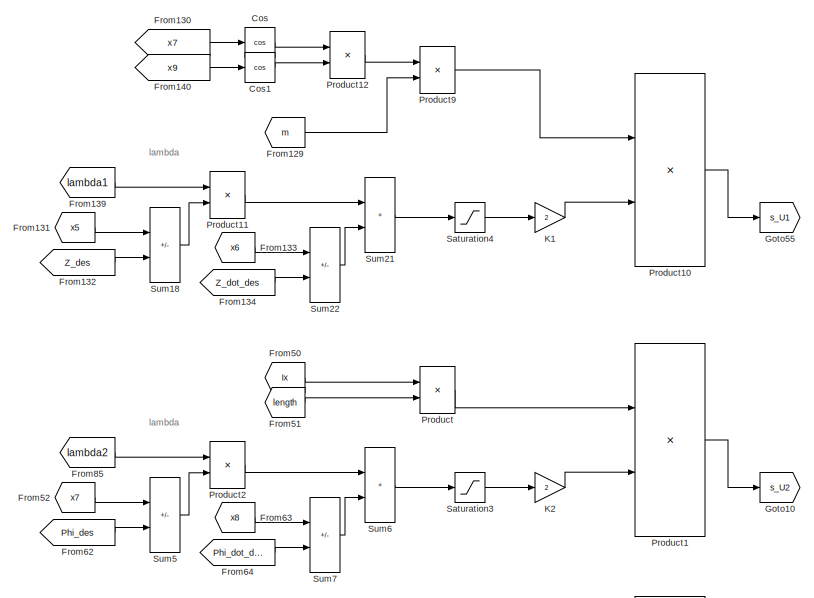
[diagram: root canvas - part 1/8, top left region]
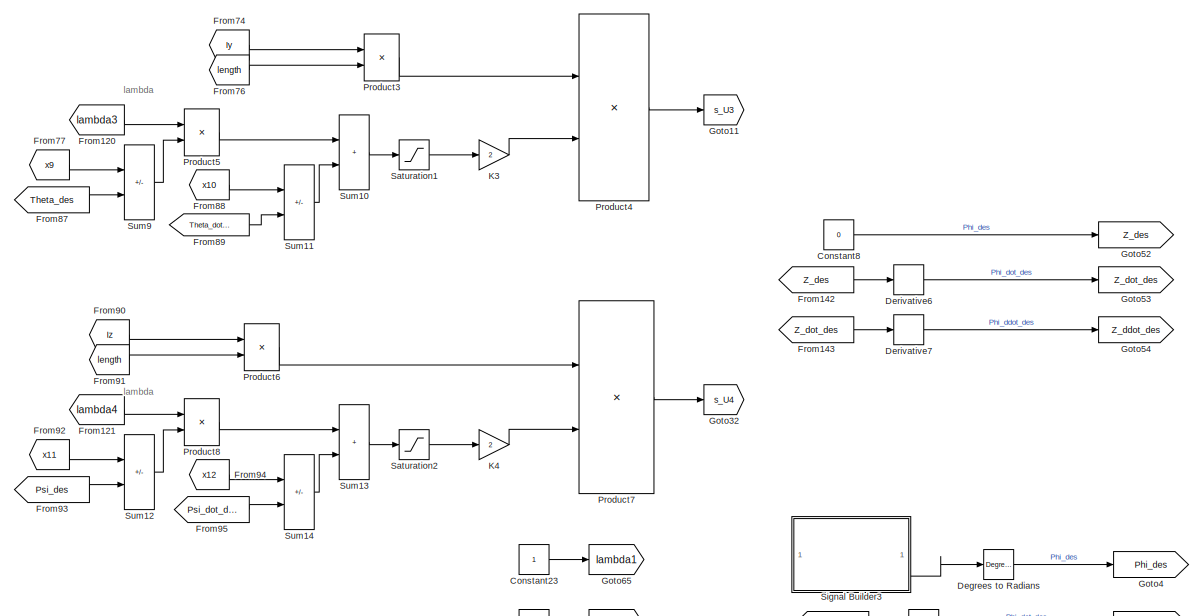
[diagram: root canvas - part 2/8, middle left region]
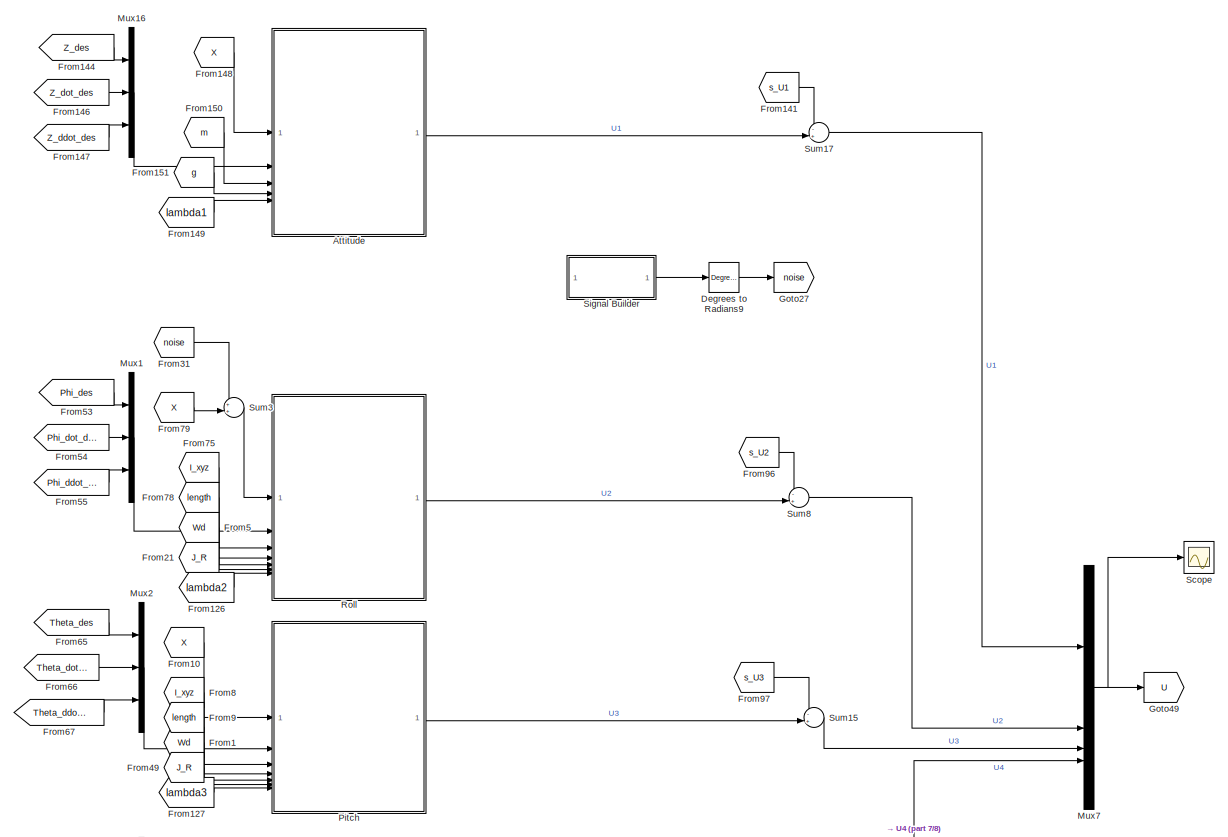
[diagram: root canvas - part 3/8, central region]
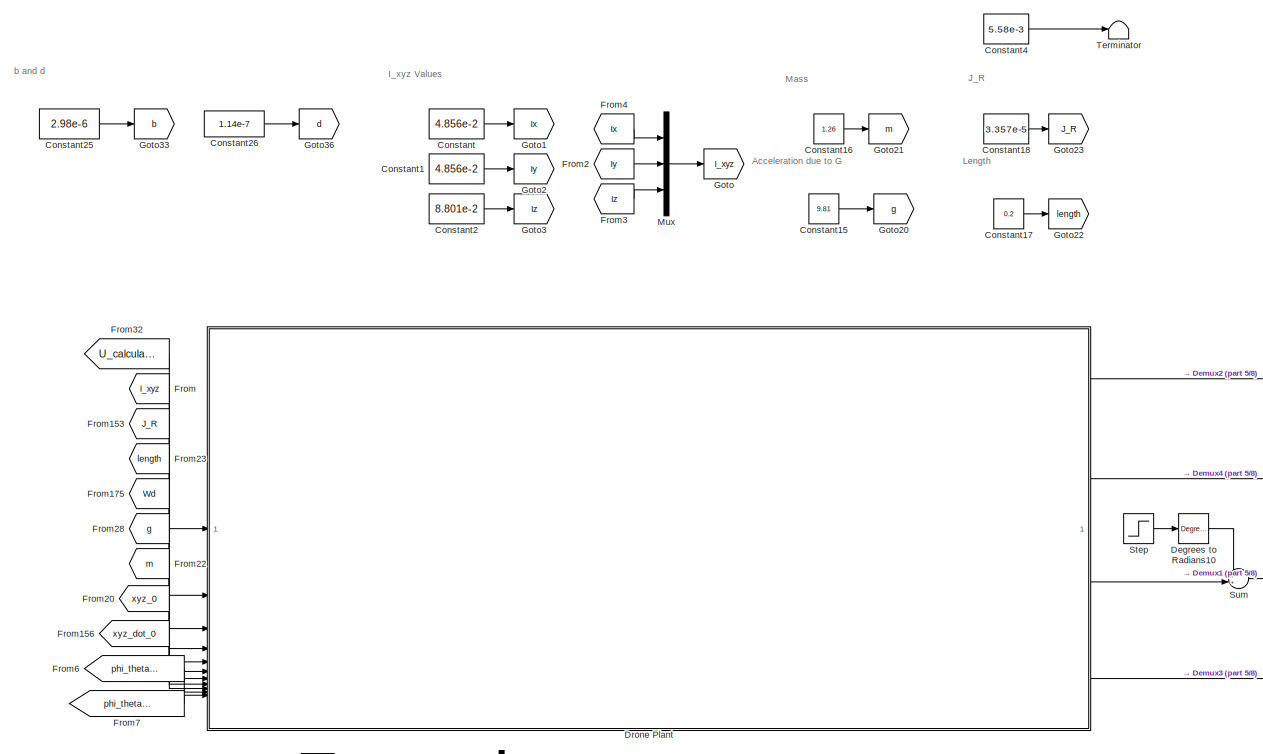
[diagram: root canvas - part 4/8, middle right region]
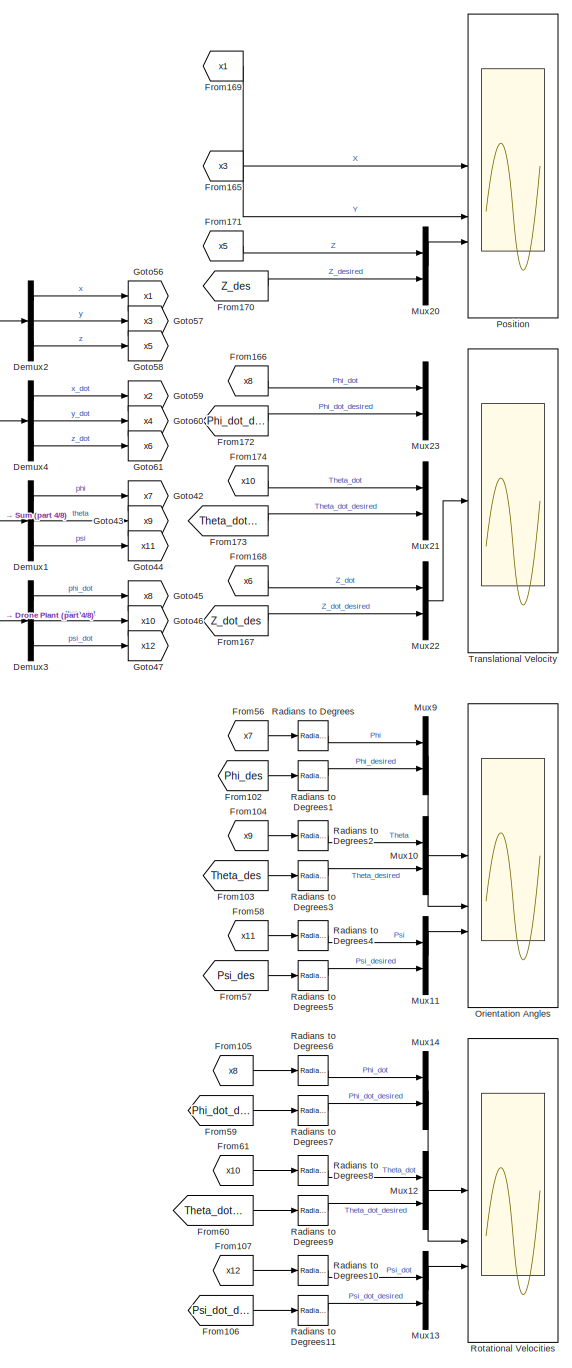
[diagram: root canvas - part 5/8, middle right region]
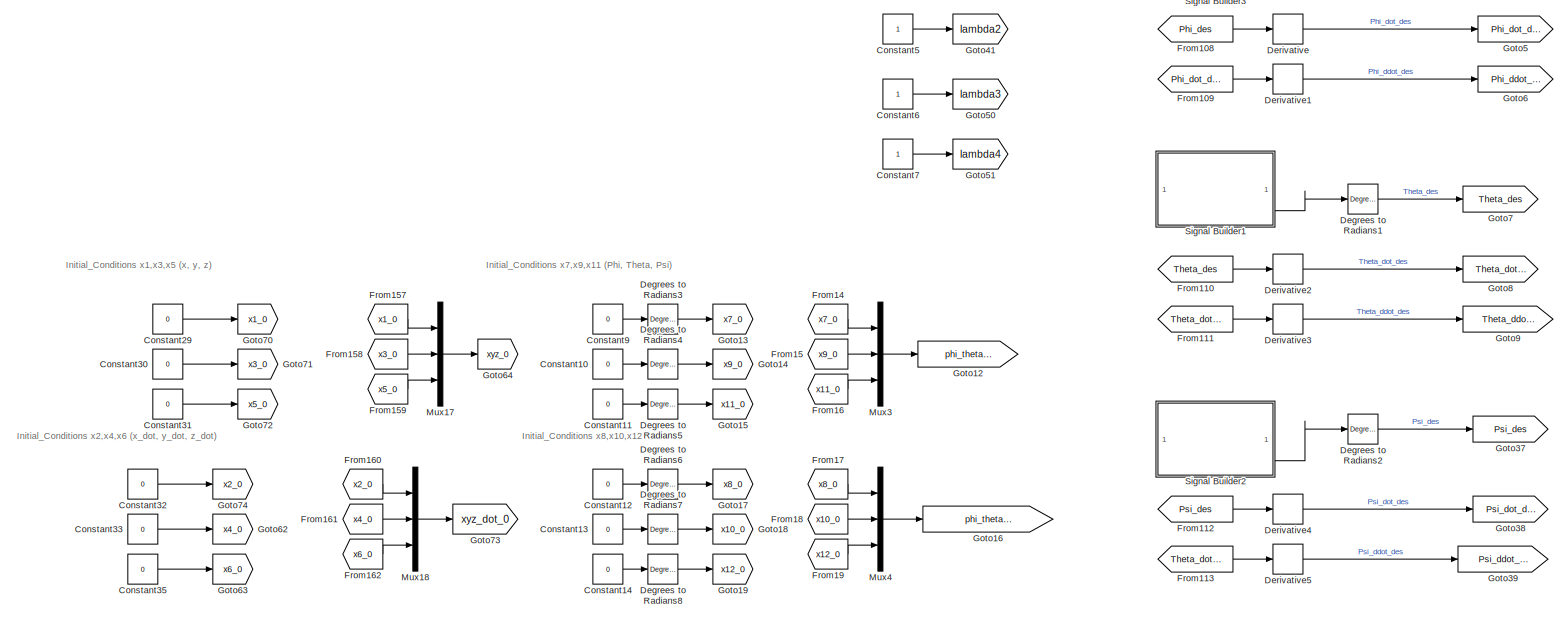
[diagram: root canvas - part 6/8, middle left region]
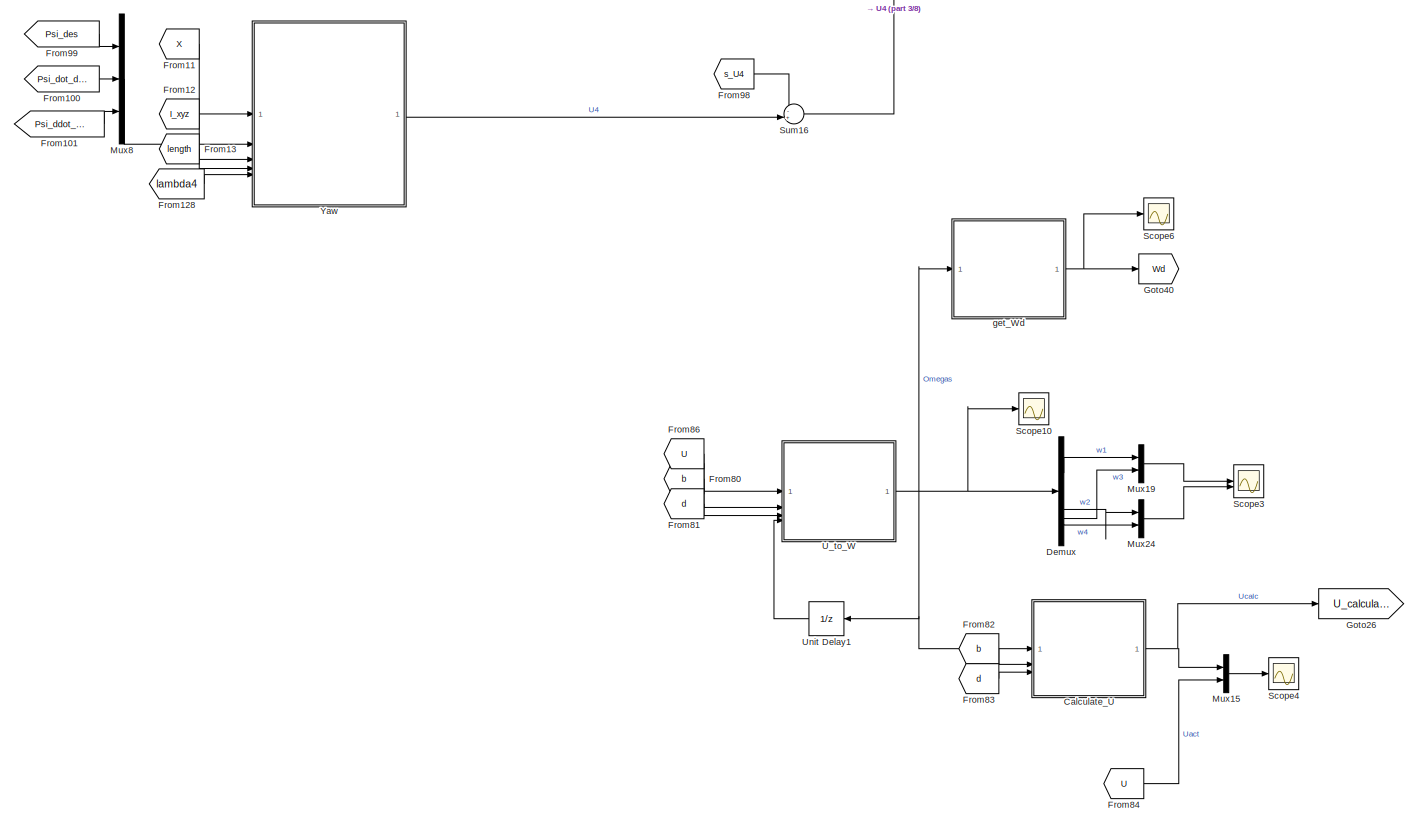
[diagram: root canvas - part 7/8, bottom center region]
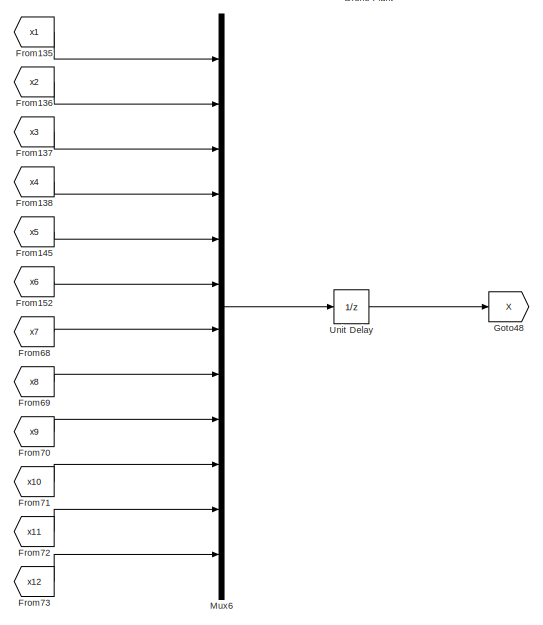
[diagram: root canvas - part 8/8, bottom right region]
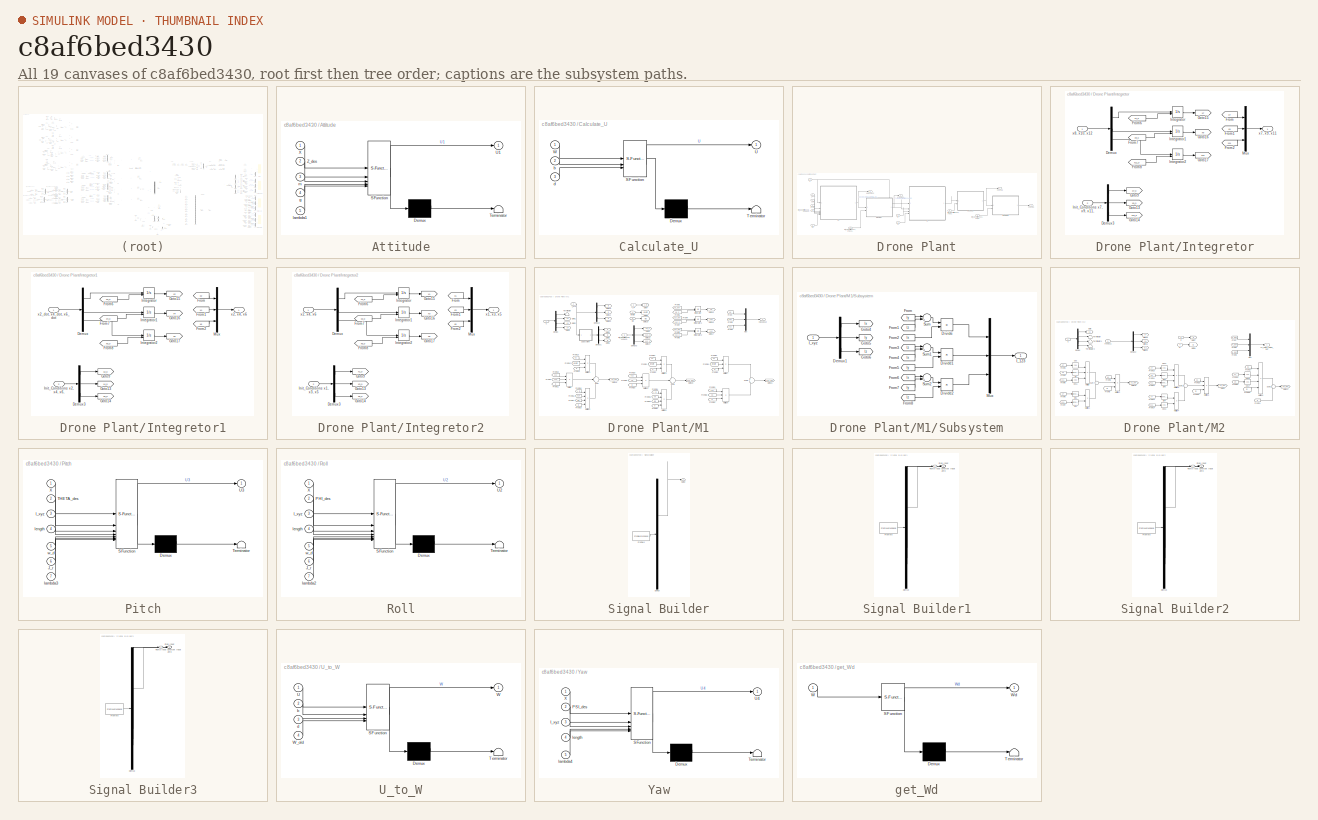
[diagram: thumbnail index - all 19 canvases of the model, root first then tree order]
MODEL slx_c8af6bed3430
KIND model
CONFIG AbsTol = auto
CONFIG EnableMultiTasking = off
CONFIG FixedStep = 0.01
CONFIG MaxStep = auto
CONFIG MinStep = auto
CONFIG RelTol = 1e-3
CONFIG SampleTimeConstraint = Unconstrained
CONFIG SolverName = ode4
CONFIG StartTime = 0.0
CONFIG StopTime = 20
BLOCK [SubSystem] Attitude
  ErrorFcn = Stateflow.Translate.translate
  PermitHierarchicalResolution = ExplicitOnly
  SFBlockType = MATLAB Function
  TreatAsAtomicUnit = on
BLOCK [Demux] Attitude/ Demux 
  Outputs = 1
BLOCK [S-Function] Attitude/ SFunction 
  EnableBusSupport = off
  FunctionName = sf_sfun
  PortCounts = [5 2]
  SFcnIsStateOwnerBlock = off
  SFunctionDeploymentMode = off
  Tag = Stateflow S-Function 9
BLOCK [Terminator] Attitude/ Terminator 
BLOCK [Outport] Attitude/U1
  VectorParamsAs1DForOutWhenUnconnected = off
BLOCK [Inport] Attitude/X
BLOCK [Inport] Attitude/Z_des
  Port = 2
BLOCK [Inport] Attitude/g
  Port = 4
BLOCK [Inport] Attitude/lambda1
  Port = 5
BLOCK [Inport] Attitude/m
  Port = 3
BLOCK [SubSystem] Calculate_U
  ErrorFcn = Stateflow.Translate.translate
  PermitHierarchicalResolution = ExplicitOnly
  SFBlockType = MATLAB Function
  TreatAsAtomicUnit = on
BLOCK [Demux] Calculate_U/ Demux 
  Outputs = 1
BLOCK [S-Function] Calculate_U/ SFunction 
  EnableBusSupport = off
  FunctionName = sf_sfun
  PortCounts = [3 2]
  SFcnIsStateOwnerBlock = off
  SFunctionDeploymentMode = off
  Tag = Stateflow S-Function 3
BLOCK [Terminator] Calculate_U/ Terminator 
BLOCK [Outport] Calculate_U/U
  VectorParamsAs1DForOutWhenUnconnected = off
BLOCK [Inport] Calculate_U/W
BLOCK [Inport] Calculate_U/b
  Port = 2
BLOCK [Inport] Calculate_U/d
  Port = 3
BLOCK [Constant] Constant
  Value = 4.856e-2
BLOCK [Constant] Constant1
  Value = 4.856e-2
BLOCK [Constant] Constant10
  Value = 0
BLOCK [Constant] Constant11
  Value = 0
BLOCK [Constant] Constant12
  Value = 0
BLOCK [Constant] Constant13
  Value = 0
BLOCK [Constant] Constant14
  Value = 0
BLOCK [Constant] Constant15
  Value = 9.81
BLOCK [Constant] Constant16
  Value = 1.26
BLOCK [Constant] Constant17
  Value = 0.2
BLOCK [Constant] Constant18
  Value = 3.357e-5
BLOCK [Constant] Constant2
  Value = 8.801e-2
BLOCK [Constant] Constant23
BLOCK [Constant] Constant25
  Value = 2.98e-6
BLOCK [Constant] Constant26
  Value = 1.14e-7
BLOCK [Constant] Constant29
  Value = 0
BLOCK [Constant] Constant30
  Value = 0
BLOCK [Constant] Constant31
  Value = 0
BLOCK [Constant] Constant32
  Value = 0
BLOCK [Constant] Constant33
  Value = 0
BLOCK [Constant] Constant35
  Value = 0
BLOCK [Constant] Constant4
  Value = 5.58e-3
BLOCK [Constant] Constant5
BLOCK [Constant] Constant6
BLOCK [Constant] Constant7
BLOCK [Constant] Constant8
  Value = 0
BLOCK [Constant] Constant9
  Value = 0
BLOCK [Trigonometry] Cos
  Operator = cos
BLOCK [Trigonometry] Cos1
  Operator = cos
BLOCK [Reference] Degrees to Radians  REF=simulink_extras/Transformations/Degrees to
Radians
  SourceBlock = simulink_extras/Transformations/Degrees to\nRadians
  SourceType = DegreesToRadians
BLOCK [Reference] Degrees to Radians1  REF=simulink_extras/Transformations/Degrees to
Radians
  SourceBlock = simulink_extras/Transformations/Degrees to\nRadians
  SourceType = DegreesToRadians
BLOCK [Reference] Degrees to Radians10  REF=simulink_extras/Transformations/Degrees to
Radians
  SourceBlock = simulink_extras/Transformations/Degrees to\nRadians
  SourceType = DegreesToRadians
BLOCK [Reference] Degrees to Radians2  REF=simulink_extras/Transformations/Degrees to
Radians
  SourceBlock = simulink_extras/Transformations/Degrees to\nRadians
  SourceType = DegreesToRadians
BLOCK [Reference] Degrees to Radians3  REF=simulink_extras/Transformations/Degrees to
Radians
  SourceBlock = simulink_extras/Transformations/Degrees to\nRadians
  SourceType = DegreesToRadians
BLOCK [Reference] Degrees to Radians4  REF=simulink_extras/Transformations/Degrees to
Radians
  SourceBlock = simulink_extras/Transformations/Degrees to\nRadians
  SourceType = DegreesToRadians
BLOCK [Reference] Degrees to Radians5  REF=simulink_extras/Transformations/Degrees to
Radians
  SourceBlock = simulink_extras/Transformations/Degrees to\nRadians
  SourceType = DegreesToRadians
BLOCK [Reference] Degrees to Radians6  REF=simulink_extras/Transformations/Degrees to
Radians
  SourceBlock = simulink_extras/Transformations/Degrees to\nRadians
  SourceType = DegreesToRadians
BLOCK [Reference] Degrees to Radians7  REF=simulink_extras/Transformations/Degrees to
Radians
  SourceBlock = simulink_extras/Transformations/Degrees to\nRadians
  SourceType = DegreesToRadians
BLOCK [Reference] Degrees to Radians8  REF=simulink_extras/Transformations/Degrees to
Radians
  SourceBlock = simulink_extras/Transformations/Degrees to\nRadians
  SourceType = DegreesToRadians
BLOCK [Reference] Degrees to Radians9  REF=simulink_extras/Transformations/Degrees to
Radians
  SourceBlock = simulink_extras/Transformations/Degrees to\nRadians
  SourceType = DegreesToRadians
BLOCK [Demux] Demux
BLOCK [Demux] Demux1
  Outputs = 3
BLOCK [Demux] Demux2
  Outputs = 3
BLOCK [Demux] Demux3
  Outputs = 3
BLOCK [Demux] Demux4
  Outputs = 3
BLOCK [Derivative] Derivative
BLOCK [Derivative] Derivative1
BLOCK [Derivative] Derivative2
BLOCK [Derivative] Derivative3
BLOCK [Derivative] Derivative4
BLOCK [Derivative] Derivative5
BLOCK [Derivative] Derivative6
BLOCK [Derivative] Derivative7
BLOCK [SubSystem] Drone Plant
BLOCK [Inport] Drone Plant/I_xyz
  Port = 2
BLOCK [Inport] Drone Plant/Init_Conditions x1, x3, x5
  Port = 8
BLOCK [Inport] Drone Plant/Init_Conditions x2, x4, x6,
  Port = 9
BLOCK [Inport] Drone Plant/Init_Conditions x7, x9, x11,
  Port = 10
BLOCK [Inport] Drone Plant/Init_Conditions x8, x10, x12,
  Port = 11
BLOCK [SubSystem] Drone Plant/Integretor
BLOCK [Demux] Drone Plant/Integretor/Demux
  Outputs = 3
BLOCK [Demux] Drone Plant/Integretor/Demux3
  Outputs = 3
BLOCK [From] Drone Plant/Integretor/From
  GotoTag = x7
BLOCK [From] Drone Plant/Integretor/From1
  GotoTag = x9
BLOCK [From] Drone Plant/Integretor/From2
  GotoTag = x11
BLOCK [From] Drone Plant/Integretor/From6
  GotoTag = x7_0
BLOCK [From] Drone Plant/Integretor/From7
  GotoTag = x9_0
BLOCK [From] Drone Plant/Integretor/From8
  GotoTag = x11_0
BLOCK [Goto] Drone Plant/Integretor/Goto13
  GotoTag = x9_0
BLOCK [Goto] Drone Plant/Integretor/Goto14
  GotoTag = x11_0
BLOCK [Goto] Drone Plant/Integretor/Goto15
  GotoTag = x7
BLOCK [Goto] Drone Plant/Integretor/Goto16
  GotoTag = x9
BLOCK [Goto] Drone Plant/Integretor/Goto17
  GotoTag = x11
BLOCK [Goto] Drone Plant/Integretor/Goto9
  GotoTag = x7_0
BLOCK [Inport] Drone Plant/Integretor/Init_Conditions x7, x9, x11,
  Port = 2
BLOCK [Integrator] Drone Plant/Integretor/Integrator
  InitialConditionSource = external
BLOCK [Integrator] Drone Plant/Integretor/Integrator1
  InitialConditionSource = external
BLOCK [Integrator] Drone Plant/Integretor/Integrator2
  InitialConditionSource = external
BLOCK [Mux] Drone Plant/Integretor/Mux
  DisplayOption = bar
  Inputs = 3
BLOCK [Outport] Drone Plant/Integretor/x7, x9, x11
  VectorParamsAs1DForOutWhenUnconnected = off
BLOCK [Inport] Drone Plant/Integretor/x8, x10, x12
BLOCK [SubSystem] Drone Plant/Integretor1
BLOCK [Demux] Drone Plant/Integretor1/Demux
  Outputs = 3
BLOCK [Demux] Drone Plant/Integretor1/Demux3
  Outputs = 3
BLOCK [From] Drone Plant/Integretor1/From
  GotoTag = x2
BLOCK [From] Drone Plant/Integretor1/From1
  GotoTag = x4
BLOCK [From] Drone Plant/Integretor1/From2
  GotoTag = x6
BLOCK [From] Drone Plant/Integretor1/From6
  GotoTag = x2_0
BLOCK [From] Drone Plant/Integretor1/From7
  GotoTag = x4_0
BLOCK [From] Drone Plant/Integretor1/From8
  GotoTag = x6_0
BLOCK [Goto] Drone Plant/Integretor1/Goto13
  GotoTag = x4_0
BLOCK [Goto] Drone Plant/Integretor1/Goto14
  GotoTag = x6_0
BLOCK [Goto] Drone Plant/Integretor1/Goto15
  GotoTag = x2
BLOCK [Goto] Drone Plant/Integretor1/Goto16
  GotoTag = x4
BLOCK [Goto] Drone Plant/Integretor1/Goto17
  GotoTag = x6
BLOCK [Goto] Drone Plant/Integretor1/Goto9
  GotoTag = x2_0
BLOCK [Inport] Drone Plant/Integretor1/Init_Conditions x2, x4, x6,
  Port = 2
BLOCK [Integrator] Drone Plant/Integretor1/Integrator
  InitialConditionSource = external
BLOCK [Integrator] Drone Plant/Integretor1/Integrator1
  InitialConditionSource = external
BLOCK [Integrator] Drone Plant/Integretor1/Integrator2
  InitialConditionSource = external
BLOCK [Mux] Drone Plant/Integretor1/Mux
  DisplayOption = bar
  Inputs = 3
BLOCK [Outport] Drone Plant/Integretor1/x2, x4, x6
  VectorParamsAs1DForOutWhenUnconnected = off
BLOCK [Inport] Drone Plant/Integretor1/x2_dot, x4_dot, x6_dot
BLOCK [SubSystem] Drone Plant/Integretor2
BLOCK [Demux] Drone Plant/Integretor2/Demux
  Outputs = 3
BLOCK [Demux] Drone Plant/Integretor2/Demux3
  Outputs = 3
BLOCK [From] Drone Plant/Integretor2/From
  GotoTag = x1
BLOCK [From] Drone Plant/Integretor2/From1
  GotoTag = x3
BLOCK [From] Drone Plant/Integretor2/From2
  GotoTag = x5
BLOCK [From] Drone Plant/Integretor2/From6
  GotoTag = x1_0
BLOCK [From] Drone Plant/Integretor2/From7
  GotoTag = x3_0
BLOCK [From] Drone Plant/Integretor2/From8
  GotoTag = x5_0
BLOCK [Goto] Drone Plant/Integretor2/Goto13
  GotoTag = x3_0
BLOCK [Goto] Drone Plant/Integretor2/Goto14
  GotoTag = x5_0
BLOCK [Goto] Drone Plant/Integretor2/Goto15
  GotoTag = x1
BLOCK [Goto] Drone Plant/Integretor2/Goto16
  GotoTag = x3
BLOCK [Goto] Drone Plant/Integretor2/Goto17
  GotoTag = x5
BLOCK [Goto] Drone Plant/Integretor2/Goto9
  GotoTag = x1_0
BLOCK [Inport] Drone Plant/Integretor2/Init_Conditions x1, x3, x5
  Port = 2
BLOCK [Integrator] Drone Plant/Integretor2/Integrator
  InitialConditionSource = external
BLOCK [Integrator] Drone Plant/Integretor2/Integrator1
  InitialConditionSource = external
BLOCK [Integrator] Drone Plant/Integretor2/Integrator2
  InitialConditionSource = external
BLOCK [Mux] Drone Plant/Integretor2/Mux
  DisplayOption = bar
  Inputs = 3
BLOCK [Outport] Drone Plant/Integretor2/x1, x3, x5
  VectorParamsAs1DForOutWhenUnconnected = off
BLOCK [Inport] Drone Plant/Integretor2/x2, x4, x6
BLOCK [Inport] Drone Plant/J_R
  Port = 3
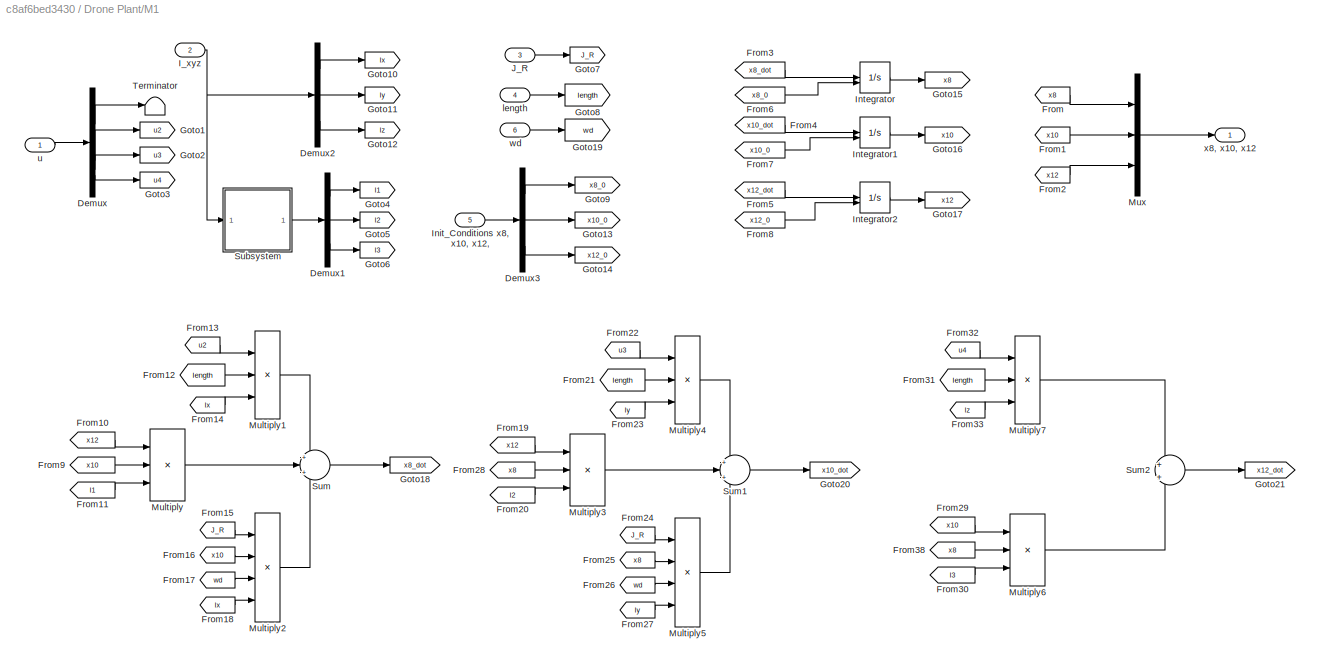
BLOCK [SubSystem] Drone Plant/M1
BLOCK [Demux] Drone Plant/M1/Demux
BLOCK [Demux] Drone Plant/M1/Demux1
  Outputs = 3
BLOCK [Demux] Drone Plant/M1/Demux2
  Outputs = 3
BLOCK [Demux] Drone Plant/M1/Demux3
  Outputs = 3
BLOCK [From] Drone Plant/M1/From
  GotoTag = x8
BLOCK [From] Drone Plant/M1/From1
  GotoTag = x10
BLOCK [From] Drone Plant/M1/From10
  GotoTag = x12
BLOCK [From] Drone Plant/M1/From11
  GotoTag = I1
BLOCK [From] Drone Plant/M1/From12
  GotoTag = length
BLOCK [From] Drone Plant/M1/From13
  GotoTag = u2
BLOCK [From] Drone Plant/M1/From14
  GotoTag = Ix
BLOCK [From] Drone Plant/M1/From15
  GotoTag = J_R
BLOCK [From] Drone Plant/M1/From16
  GotoTag = x10
BLOCK [From] Drone Plant/M1/From17
  GotoTag = wd
BLOCK [From] Drone Plant/M1/From18
  GotoTag = Ix
BLOCK [From] Drone Plant/M1/From19
  GotoTag = x12
BLOCK [From] Drone Plant/M1/From2
  GotoTag = x12
BLOCK [From] Drone Plant/M1/From20
  GotoTag = I2
BLOCK [From] Drone Plant/M1/From21
  GotoTag = length
BLOCK [From] Drone Plant/M1/From22
  GotoTag = u3
BLOCK [From] Drone Plant/M1/From23
  GotoTag = Iy
BLOCK [From] Drone Plant/M1/From24
  GotoTag = J_R
BLOCK [From] Drone Plant/M1/From25
  GotoTag = x8
BLOCK [From] Drone Plant/M1/From26
  GotoTag = wd
BLOCK [From] Drone Plant/M1/From27
  GotoTag = Iy
BLOCK [From] Drone Plant/M1/From28
  GotoTag = x8
BLOCK [From] Drone Plant/M1/From29
  GotoTag = x10
BLOCK [From] Drone Plant/M1/From3
  GotoTag = x8_dot
BLOCK [From] Drone Plant/M1/From30
  GotoTag = I3
BLOCK [From] Drone Plant/M1/From31
  GotoTag = length
BLOCK [From] Drone Plant/M1/From32
  GotoTag = u4
BLOCK [From] Drone Plant/M1/From33
  GotoTag = Iz
BLOCK [From] Drone Plant/M1/From38
  GotoTag = x8
BLOCK [From] Drone Plant/M1/From4
  GotoTag = x10_dot
BLOCK [From] Drone Plant/M1/From5
  GotoTag = x12_dot
BLOCK [From] Drone Plant/M1/From6
  GotoTag = x8_0
BLOCK [From] Drone Plant/M1/From7
  GotoTag = x10_0
BLOCK [From] Drone Plant/M1/From8
  GotoTag = x12_0
BLOCK [From] Drone Plant/M1/From9
  GotoTag = x10
BLOCK [Goto] Drone Plant/M1/Goto1
  GotoTag = u2
BLOCK [Goto] Drone Plant/M1/Goto10
  GotoTag = Ix
BLOCK [Goto] Drone Plant/M1/Goto11
  GotoTag = Iy
BLOCK [Goto] Drone Plant/M1/Goto12
  GotoTag = Iz
BLOCK [Goto] Drone Plant/M1/Goto13
  GotoTag = x10_0
BLOCK [Goto] Drone Plant/M1/Goto14
  GotoTag = x12_0
BLOCK [Goto] Drone Plant/M1/Goto15
  GotoTag = x8
BLOCK [Goto] Drone Plant/M1/Goto16
  GotoTag = x10
BLOCK [Goto] Drone Plant/M1/Goto17
  GotoTag = x12
BLOCK [Goto] Drone Plant/M1/Goto18
  GotoTag = x8_dot
BLOCK [Goto] Drone Plant/M1/Goto19
  GotoTag = wd
BLOCK [Goto] Drone Plant/M1/Goto2
  GotoTag = u3
BLOCK [Goto] Drone Plant/M1/Goto20
  GotoTag = x10_dot
BLOCK [Goto] Drone Plant/M1/Goto21
  GotoTag = x12_dot
BLOCK [Goto] Drone Plant/M1/Goto3
  GotoTag = u4
BLOCK [Goto] Drone Plant/M1/Goto4
  GotoTag = I1
BLOCK [Goto] Drone Plant/M1/Goto5
  GotoTag = I2
BLOCK [Goto] Drone Plant/M1/Goto6
  GotoTag = I3
BLOCK [Goto] Drone Plant/M1/Goto7
  GotoTag = J_R
BLOCK [Goto] Drone Plant/M1/Goto8
  GotoTag = length
BLOCK [Goto] Drone Plant/M1/Goto9
  GotoTag = x8_0
BLOCK [Inport] Drone Plant/M1/I_xyz
  Port = 2
BLOCK [Inport] Drone Plant/M1/Init_Conditions x8, x10, x12,
  Port = 5
BLOCK [Integrator] Drone Plant/M1/Integrator
  InitialConditionSource = external
BLOCK [Integrator] Drone Plant/M1/Integrator1
  InitialConditionSource = external
BLOCK [Integrator] Drone Plant/M1/Integrator2
  InitialConditionSource = external
BLOCK [Inport] Drone Plant/M1/J_R
  Port = 3
BLOCK [Product] Drone Plant/M1/Multiply
  Inputs = 3
BLOCK [Product] Drone Plant/M1/Multiply1
  Inputs = **/
BLOCK [Product] Drone Plant/M1/Multiply2
  Inputs = ***/
BLOCK [Product] Drone Plant/M1/Multiply3
  Inputs = 3
BLOCK [Product] Drone Plant/M1/Multiply4
  Inputs = **/
BLOCK [Product] Drone Plant/M1/Multiply5
  Inputs = ***/
BLOCK [Product] Drone Plant/M1/Multiply6
  Inputs = 3
BLOCK [Product] Drone Plant/M1/Multiply7
  Inputs = **/
BLOCK [Mux] Drone Plant/M1/Mux
  DisplayOption = bar
  Inputs = 3
BLOCK [SubSystem] Drone Plant/M1/Subsystem
BLOCK [Demux] Drone Plant/M1/Subsystem/Demux1
  Outputs = 3
BLOCK [Product] Drone Plant/M1/Subsystem/Divide
  Inputs = */
BLOCK [Product] Drone Plant/M1/Subsystem/Divide1
  Inputs = */
BLOCK [Product] Drone Plant/M1/Subsystem/Divide2
  Inputs = */
BLOCK [From] Drone Plant/M1/Subsystem/From
  GotoTag = Iy
BLOCK [From] Drone Plant/M1/Subsystem/From1
  GotoTag = Iz
BLOCK [From] Drone Plant/M1/Subsystem/From2
  GotoTag = Ix
BLOCK [From] Drone Plant/M1/Subsystem/From3
  GotoTag = Iz
BLOCK [From] Drone Plant/M1/Subsystem/From4
  GotoTag = Ix
BLOCK [From] Drone Plant/M1/Subsystem/From5
  GotoTag = Iy
BLOCK [From] Drone Plant/M1/Subsystem/From6
  GotoTag = Ix
BLOCK [From] Drone Plant/M1/Subsystem/From7
  GotoTag = Iy
BLOCK [From] Drone Plant/M1/Subsystem/From8
  GotoTag = Iz
BLOCK [Goto] Drone Plant/M1/Subsystem/Goto4
  GotoTag = Ix
BLOCK [Goto] Drone Plant/M1/Subsystem/Goto5
  GotoTag = Iy
BLOCK [Goto] Drone Plant/M1/Subsystem/Goto6
  GotoTag = Iz
BLOCK [Outport] Drone Plant/M1/Subsystem/I_123
  VectorParamsAs1DForOutWhenUnconnected = off
BLOCK [Inport] Drone Plant/M1/Subsystem/I_xyz
BLOCK [Mux] Drone Plant/M1/Subsystem/Mux
  DisplayOption = bar
  Inputs = 3
BLOCK [Sum] Drone Plant/M1/Subsystem/Sum
  Inputs = |+-
BLOCK [Sum] Drone Plant/M1/Subsystem/Sum1
  Inputs = |+-
BLOCK [Sum] Drone Plant/M1/Subsystem/Sum2
  Inputs = |+-
BLOCK [Sum] Drone Plant/M1/Sum
  Inputs = +|+|-
BLOCK [Sum] Drone Plant/M1/Sum1
  Inputs = +|+|+
BLOCK [Sum] Drone Plant/M1/Sum2
  Inputs = +|+
BLOCK [Terminator] Drone Plant/M1/Terminator
BLOCK [Inport] Drone Plant/M1/length
  Port = 4
BLOCK [Inport] Drone Plant/M1/u
BLOCK [Inport] Drone Plant/M1/wd
  Port = 6
BLOCK [Outport] Drone Plant/M1/x8, x10, x12
  VectorParamsAs1DForOutWhenUnconnected = off
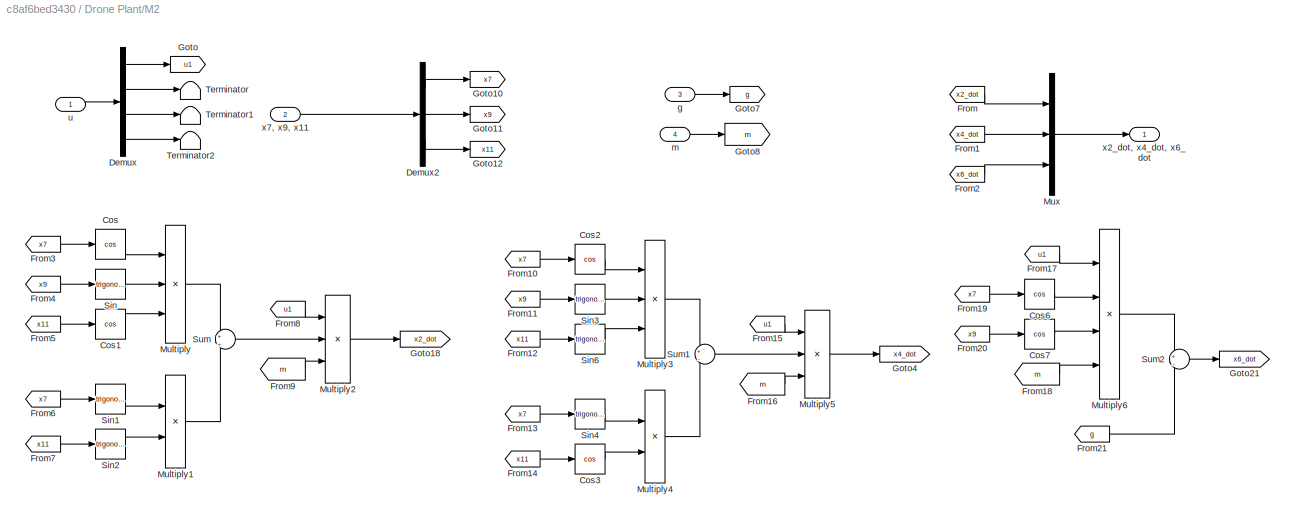
BLOCK [SubSystem] Drone Plant/M2
BLOCK [Trigonometry] Drone Plant/M2/Cos
  Operator = cos
BLOCK [Trigonometry] Drone Plant/M2/Cos1
  Operator = cos
BLOCK [Trigonometry] Drone Plant/M2/Cos2
  Operator = cos
BLOCK [Trigonometry] Drone Plant/M2/Cos3
  Operator = cos
BLOCK [Trigonometry] Drone Plant/M2/Cos6
  Operator = cos
BLOCK [Trigonometry] Drone Plant/M2/Cos7
  Operator = cos
BLOCK [Demux] Drone Plant/M2/Demux
BLOCK [Demux] Drone Plant/M2/Demux2
  Outputs = 3
BLOCK [From] Drone Plant/M2/From
  GotoTag = x2_dot
BLOCK [From] Drone Plant/M2/From1
  GotoTag = x4_dot
BLOCK [From] Drone Plant/M2/From10
  GotoTag = x7
BLOCK [From] Drone Plant/M2/From11
  GotoTag = x9
BLOCK [From] Drone Plant/M2/From12
  GotoTag = x11
BLOCK [From] Drone Plant/M2/From13
  GotoTag = x7
BLOCK [From] Drone Plant/M2/From14
  GotoTag = x11
BLOCK [From] Drone Plant/M2/From15
  GotoTag = u1
BLOCK [From] Drone Plant/M2/From16
  GotoTag = m
BLOCK [From] Drone Plant/M2/From17
  GotoTag = u1
BLOCK [From] Drone Plant/M2/From18
  GotoTag = m
BLOCK [From] Drone Plant/M2/From19
  GotoTag = x7
BLOCK [From] Drone Plant/M2/From2
  GotoTag = x6_dot
BLOCK [From] Drone Plant/M2/From20
  GotoTag = x9
BLOCK [From] Drone Plant/M2/From21
  GotoTag = g
BLOCK [From] Drone Plant/M2/From3
  GotoTag = x7
BLOCK [From] Drone Plant/M2/From4
  GotoTag = x9
BLOCK [From] Drone Plant/M2/From5
  GotoTag = x11
BLOCK [From] Drone Plant/M2/From6
  GotoTag = x7
BLOCK [From] Drone Plant/M2/From7
  GotoTag = x11
BLOCK [From] Drone Plant/M2/From8
  GotoTag = u1
BLOCK [From] Drone Plant/M2/From9
  GotoTag = m
BLOCK [Goto] Drone Plant/M2/Goto
  GotoTag = u1
BLOCK [Goto] Drone Plant/M2/Goto10
  GotoTag = x7
BLOCK [Goto] Drone Plant/M2/Goto11
  GotoTag = x9
BLOCK [Goto] Drone Plant/M2/Goto12
  GotoTag = x11
BLOCK [Goto] Drone Plant/M2/Goto18
  GotoTag = x2_dot
BLOCK [Goto] Drone Plant/M2/Goto21
  GotoTag = x6_dot
BLOCK [Goto] Drone Plant/M2/Goto4
  GotoTag = x4_dot
BLOCK [Goto] Drone Plant/M2/Goto7
  GotoTag = g
BLOCK [Goto] Drone Plant/M2/Goto8
  GotoTag = m
BLOCK [Product] Drone Plant/M2/Multiply
  Inputs = 3
BLOCK [Product] Drone Plant/M2/Multiply1
BLOCK [Product] Drone Plant/M2/Multiply2
  Inputs = **/
BLOCK [Product] Drone Plant/M2/Multiply3
  Inputs = 3
BLOCK [Product] Drone Plant/M2/Multiply4
BLOCK [Product] Drone Plant/M2/Multiply5
  Inputs = **/
BLOCK [Product] Drone Plant/M2/Multiply6
  Inputs = ***/
BLOCK [Mux] Drone Plant/M2/Mux
  DisplayOption = bar
  Inputs = 3
BLOCK [Trigonometry] Drone Plant/M2/Sin
BLOCK [Trigonometry] Drone Plant/M2/Sin1
BLOCK [Trigonometry] Drone Plant/M2/Sin2
BLOCK [Trigonometry] Drone Plant/M2/Sin3
BLOCK [Trigonometry] Drone Plant/M2/Sin4
BLOCK [Trigonometry] Drone Plant/M2/Sin6
BLOCK [Sum] Drone Plant/M2/Sum
  Inputs = +|+
BLOCK [Sum] Drone Plant/M2/Sum1
  Inputs = +|-
BLOCK [Sum] Drone Plant/M2/Sum2
  Inputs = +|-
BLOCK [Terminator] Drone Plant/M2/Terminator
BLOCK [Terminator] Drone Plant/M2/Terminator1
BLOCK [Terminator] Drone Plant/M2/Terminator2
BLOCK [Inport] Drone Plant/M2/g
  Port = 3
BLOCK [Inport] Drone Plant/M2/m
  Port = 4
BLOCK [Inport] Drone Plant/M2/u
BLOCK [Outport] Drone Plant/M2/x2_dot, x4_dot, x6_dot
  VectorParamsAs1DForOutWhenUnconnected = off
BLOCK [Inport] Drone Plant/M2/x7, x9, x11
  Port = 2
BLOCK [Inport] Drone Plant/g
  Port = 6
BLOCK [Inport] Drone Plant/length
  Port = 4
BLOCK [Inport] Drone Plant/m
  Port = 7
BLOCK [Inport] Drone Plant/u
BLOCK [Inport] Drone Plant/wd
  Port = 5
BLOCK [Outport] Drone Plant/x1, x3, x5
  VectorParamsAs1DForOutWhenUnconnected = off
BLOCK [Outport] Drone Plant/x2, x4, x6
  Port = 2
  VectorParamsAs1DForOutWhenUnconnected = off
BLOCK [Outport] Drone Plant/x7, x9, x11
  Port = 3
  VectorParamsAs1DForOutWhenUnconnected = off
BLOCK [Outport] Drone Plant/x8, x10, x12
  Port = 4
  VectorParamsAs1DForOutWhenUnconnected = off
BLOCK [From] From
  GotoTag = I_xyz
BLOCK [From] From1
  GotoTag = Wd
BLOCK [From] From10
  GotoTag = X
BLOCK [From] From100
  GotoTag = Psi_dot_des
BLOCK [From] From101
  GotoTag = Psi_ddot_des
BLOCK [From] From102
  GotoTag = Phi_des
BLOCK [From] From103
  GotoTag = Theta_des
BLOCK [From] From104
  GotoTag = x9
BLOCK [From] From105
  GotoTag = x8
BLOCK [From] From106
  GotoTag = Psi_dot_des
BLOCK [From] From107
  GotoTag = x12
BLOCK [From] From108
  GotoTag = Phi_des
BLOCK [From] From109
  GotoTag = Phi_dot_des
BLOCK [From] From11
  GotoTag = X
BLOCK [From] From110
  GotoTag = Theta_des
BLOCK [From] From111
  GotoTag = Theta_dot_des
BLOCK [From] From112
  GotoTag = Psi_des
BLOCK [From] From113
  GotoTag = Theta_dot_des
BLOCK [From] From12
  GotoTag = I_xyz
BLOCK [From] From120
  GotoTag = lambda3
BLOCK [From] From121
  GotoTag = lambda4
BLOCK [From] From126
  GotoTag = lambda2
BLOCK [From] From127
  GotoTag = lambda3
BLOCK [From] From128
  GotoTag = lambda4
BLOCK [From] From129
  GotoTag = m
BLOCK [From] From13
  GotoTag = length
BLOCK [From] From130
  GotoTag = x7
BLOCK [From] From131
  GotoTag = x5
BLOCK [From] From132
  GotoTag = Z_des
BLOCK [From] From133
  GotoTag = x6
BLOCK [From] From134
  GotoTag = Z_dot_des
BLOCK [From] From135
  GotoTag = x1
BLOCK [From] From136
  GotoTag = x2
BLOCK [From] From137
  GotoTag = x3
BLOCK [From] From138
  GotoTag = x4
BLOCK [From] From139
  GotoTag = lambda1
BLOCK [From] From14
  GotoTag = x7_0
BLOCK [From] From140
  GotoTag = x9
BLOCK [From] From141
  GotoTag = s_U1
BLOCK [From] From142
  GotoTag = Z_des
BLOCK [From] From143
  GotoTag = Z_dot_des
BLOCK [From] From144
  GotoTag = Z_des
BLOCK [From] From145
  GotoTag = x5
BLOCK [From] From146
  GotoTag = Z_dot_des
BLOCK [From] From147
  GotoTag = Z_ddot_des
BLOCK [From] From148
  GotoTag = X
BLOCK [From] From149
  GotoTag = lambda1
BLOCK [From] From15
  GotoTag = x9_0
BLOCK [From] From150
  GotoTag = m
BLOCK [From] From151
  GotoTag = g
BLOCK [From] From152
  GotoTag = x6
BLOCK [From] From153
  GotoTag = J_R
BLOCK [From] From156
  GotoTag = xyz_dot_0
BLOCK [From] From157
  GotoTag = x1_0
BLOCK [From] From158
  GotoTag = x3_0
BLOCK [From] From159
  GotoTag = x5_0
BLOCK [From] From16
  GotoTag = x11_0
BLOCK [From] From160
  GotoTag = x2_0
BLOCK [From] From161
  GotoTag = x4_0
BLOCK [From] From162
  GotoTag = x6_0
BLOCK [From] From165
  GotoTag = x3
BLOCK [From] From166
  Commented = on
  GotoTag = x8
BLOCK [From] From167
  GotoTag = Z_dot_des
BLOCK [From] From168
  GotoTag = x6
BLOCK [From] From169
  GotoTag = x1
BLOCK [From] From17
  GotoTag = x8_0
BLOCK [From] From170
  GotoTag = Z_des
BLOCK [From] From171
  GotoTag = x5
BLOCK [From] From172
  Commented = on
  GotoTag = Phi_dot_des
BLOCK [From] From173
  Commented = on
  GotoTag = Theta_dot_des
BLOCK [From] From174
  Commented = on
  GotoTag = x10
BLOCK [From] From175
  GotoTag = Wd
BLOCK [From] From18
  GotoTag = x10_0
BLOCK [From] From19
  GotoTag = x12_0
BLOCK [From] From2
  GotoTag = Iy
BLOCK [From] From20
  GotoTag = xyz_0
BLOCK [From] From21
  GotoTag = J_R
BLOCK [From] From22
  GotoTag = m
BLOCK [From] From23
  GotoTag = length
BLOCK [From] From28
  GotoTag = g
BLOCK [From] From3
  GotoTag = Iz
BLOCK [From] From31
  GotoTag = noise
BLOCK [From] From32
  GotoTag = U_calculated
BLOCK [From] From4
  GotoTag = Ix
BLOCK [From] From49
  GotoTag = J_R
BLOCK [From] From5
  GotoTag = Wd
BLOCK [From] From50
  GotoTag = Ix
BLOCK [From] From51
  GotoTag = length
BLOCK [From] From52
  GotoTag = x7
BLOCK [From] From53
  GotoTag = Phi_des
BLOCK [From] From54
  GotoTag = Phi_dot_des
BLOCK [From] From55
  GotoTag = Phi_ddot_des
BLOCK [From] From56
  GotoTag = x7
BLOCK [From] From57
  GotoTag = Psi_des
BLOCK [From] From58
  GotoTag = x11
BLOCK [From] From59
  GotoTag = Phi_dot_des
BLOCK [From] From6
  GotoTag = phi_theta_psi_0
BLOCK [From] From60
  GotoTag = Theta_dot_des
BLOCK [From] From61
  GotoTag = x10
BLOCK [From] From62
  GotoTag = Phi_des
BLOCK [From] From63
  GotoTag = x8
BLOCK [From] From64
  GotoTag = Phi_dot_des
BLOCK [From] From65
  GotoTag = Theta_des
BLOCK [From] From66
  GotoTag = Theta_dot_des
BLOCK [From] From67
  GotoTag = Theta_ddot_des
BLOCK [From] From68
  GotoTag = x7
BLOCK [From] From69
  GotoTag = x8
BLOCK [From] From7
  GotoTag = phi_theta_psi_dot_0
BLOCK [From] From70
  GotoTag = x9
BLOCK [From] From71
  GotoTag = x10
BLOCK [From] From72
  GotoTag = x11
BLOCK [From] From73
  GotoTag = x12
BLOCK [From] From74
  GotoTag = Iy
BLOCK [From] From75
  GotoTag = I_xyz
BLOCK [From] From76
  GotoTag = length
BLOCK [From] From77
  GotoTag = x9
BLOCK [From] From78
  GotoTag = length
BLOCK [From] From79
  GotoTag = X
BLOCK [From] From8
  GotoTag = I_xyz
BLOCK [From] From80
  GotoTag = b
BLOCK [From] From81
  GotoTag = d
BLOCK [From] From82
  GotoTag = b
BLOCK [From] From83
  GotoTag = d
BLOCK [From] From84
  GotoTag = U
BLOCK [From] From85
  GotoTag = lambda2
BLOCK [From] From86
  GotoTag = U
BLOCK [From] From87
  GotoTag = Theta_des
BLOCK [From] From88
  GotoTag = x10
BLOCK [From] From89
  GotoTag = Theta_dot_des
BLOCK [From] From9
  GotoTag = length
BLOCK [From] From90
  GotoTag = Iz
BLOCK [From] From91
  GotoTag = length
BLOCK [From] From92
  GotoTag = x11
BLOCK [From] From93
  GotoTag = Psi_des
BLOCK [From] From94
  GotoTag = x12
BLOCK [From] From95
  GotoTag = Psi_dot_des
BLOCK [From] From96
  GotoTag = s_U2
BLOCK [From] From97
  GotoTag = s_U3
BLOCK [From] From98
  GotoTag = s_U4
BLOCK [From] From99
  GotoTag = Psi_des
BLOCK [Goto] Goto
  GotoTag = I_xyz
BLOCK [Goto] Goto1
  GotoTag = Ix
BLOCK [Goto] Goto10
  GotoTag = s_U2
BLOCK [Goto] Goto11
  GotoTag = s_U3
BLOCK [Goto] Goto12
  GotoTag = phi_theta_psi_0
BLOCK [Goto] Goto13
  GotoTag = x7_0
BLOCK [Goto] Goto14
  GotoTag = x9_0
BLOCK [Goto] Goto15
  GotoTag = x11_0
BLOCK [Goto] Goto16
  GotoTag = phi_theta_psi_dot_0
BLOCK [Goto] Goto17
  GotoTag = x8_0
BLOCK [Goto] Goto18
  GotoTag = x10_0
BLOCK [Goto] Goto19
  GotoTag = x12_0
BLOCK [Goto] Goto2
  GotoTag = Iy
BLOCK [Goto] Goto20
  GotoTag = g
BLOCK [Goto] Goto21
  GotoTag = m
BLOCK [Goto] Goto22
  GotoTag = length
BLOCK [Goto] Goto23
  GotoTag = J_R
BLOCK [Goto] Goto26
  GotoTag = U_calculated
BLOCK [Goto] Goto27
  GotoTag = noise
BLOCK [Goto] Goto3
  GotoTag = Iz
BLOCK [Goto] Goto32
  GotoTag = s_U4
BLOCK [Goto] Goto33
  GotoTag = b
BLOCK [Goto] Goto36
  GotoTag = d
BLOCK [Goto] Goto37
  GotoTag = Psi_des
BLOCK [Goto] Goto38
  GotoTag = Psi_dot_des
BLOCK [Goto] Goto39
  GotoTag = Psi_ddot_des
BLOCK [Goto] Goto4
  GotoTag = Phi_des
BLOCK [Goto] Goto40
  GotoTag = Wd
BLOCK [Goto] Goto41
  GotoTag = lambda2
BLOCK [Goto] Goto42
  GotoTag = x7
BLOCK [Goto] Goto43
  GotoTag = x9
BLOCK [Goto] Goto44
  GotoTag = x11
BLOCK [Goto] Goto45
  GotoTag = x8
BLOCK [Goto] Goto46
  GotoTag = x10
BLOCK [Goto] Goto47
  GotoTag = x12
BLOCK [Goto] Goto48
  GotoTag = X
BLOCK [Goto] Goto49
  GotoTag = U
BLOCK [Goto] Goto5
  GotoTag = Phi_dot_des
BLOCK [Goto] Goto50
  GotoTag = lambda3
BLOCK [Goto] Goto51
  GotoTag = lambda4
BLOCK [Goto] Goto52
  GotoTag = Z_des
BLOCK [Goto] Goto53
  GotoTag = Z_dot_des
BLOCK [Goto] Goto54
  GotoTag = Z_ddot_des
BLOCK [Goto] Goto55
  GotoTag = s_U1
BLOCK [Goto] Goto56
  GotoTag = x1
BLOCK [Goto] Goto57
  GotoTag = x3
BLOCK [Goto] Goto58
  GotoTag = x5
BLOCK [Goto] Goto59
  GotoTag = x2
BLOCK [Goto] Goto6
  GotoTag = Phi_ddot_des
BLOCK [Goto] Goto60
  GotoTag = x4
BLOCK [Goto] Goto61
  GotoTag = x6
BLOCK [Goto] Goto62
  GotoTag = x4_0
BLOCK [Goto] Goto63
  GotoTag = x6_0
BLOCK [Goto] Goto64
  GotoTag = xyz_0
BLOCK [Goto] Goto65
  GotoTag = lambda1
BLOCK [Goto] Goto7
  GotoTag = Theta_des
BLOCK [Goto] Goto70
  GotoTag = x1_0
BLOCK [Goto] Goto71
  GotoTag = x3_0
BLOCK [Goto] Goto72
  GotoTag = x5_0
BLOCK [Goto] Goto73
  GotoTag = xyz_dot_0
BLOCK [Goto] Goto74
  GotoTag = x2_0
BLOCK [Goto] Goto8
  GotoTag = Theta_dot_des
BLOCK [Goto] Goto9
  GotoTag = Theta_ddot_des
BLOCK [Gain] K1
  Gain = 2
BLOCK [Gain] K2
  Gain = 2
BLOCK [Gain] K3
  Gain = 2
BLOCK [Gain] K4
  Gain = 2
BLOCK [Mux] Mux
  DisplayOption = bar
  Inputs = 3
BLOCK [Mux] Mux1
  DisplayOption = bar
  Inputs = 3
BLOCK [Mux] Mux10
  DisplayOption = bar
  Inputs = 2
BLOCK [Mux] Mux11
  DisplayOption = bar
  Inputs = 2
BLOCK [Mux] Mux12
  DisplayOption = bar
  Inputs = 2
BLOCK [Mux] Mux13
  DisplayOption = bar
  Inputs = 2
BLOCK [Mux] Mux14
  DisplayOption = bar
  Inputs = 2
BLOCK [Mux] Mux15
  DisplayOption = bar
  Inputs = 2
BLOCK [Mux] Mux16
  DisplayOption = bar
  Inputs = 3
BLOCK [Mux] Mux17
  DisplayOption = bar
  Inputs = 3
BLOCK [Mux] Mux18
  DisplayOption = bar
  Inputs = 3
BLOCK [Mux] Mux19
  DisplayOption = bar
  Inputs = 2
BLOCK [Mux] Mux2
  DisplayOption = bar
  Inputs = 3
BLOCK [Mux] Mux20
  DisplayOption = bar
  Inputs = 2
BLOCK [Mux] Mux21
  Commented = on
  DisplayOption = bar
  Inputs = 2
BLOCK [Mux] Mux22
  DisplayOption = bar
  Inputs = 2
BLOCK [Mux] Mux23
  Commented = on
  DisplayOption = bar
  Inputs = 2
BLOCK [Mux] Mux24
  DisplayOption = bar
  Inputs = 2
BLOCK [Mux] Mux3
  DisplayOption = bar
  Inputs = 3
BLOCK [Mux] Mux4
  DisplayOption = bar
  Inputs = 3
BLOCK [Mux] Mux6
  DisplayOption = bar
  Inputs = 12
BLOCK [Mux] Mux7
  DisplayOption = bar
BLOCK [Mux] Mux8
  DisplayOption = bar
  Inputs = 3
BLOCK [Mux] Mux9
  DisplayOption = bar
  Inputs = 2
BLOCK [Scope] Orientation Angles
  Floating = off
  NumInputPorts = 3
  ScopeSpecificationString = Simulink.scopes.TimeScopeBlockCfg('CurrentConfiguration', extmgr.ConfigurationSet(extmgr.Configuration('Core','General UI',true,'FigureColor',[1 1 1]),extmgr.Configuration('Core','Source UI',true),extmgr.Configuration('Sources','WiredSimulink',true,'DataLoggingVariableName','ScopeData1'),extmgr.Configuration('Visuals','Time Domain',true,'SerializedDisplays',{struct('MinYLimReal','-0.38479','MaxYLi...<+3595ch>
BLOCK [SubSystem] Pitch
  ErrorFcn = Stateflow.Translate.translate
  PermitHierarchicalResolution = ExplicitOnly
  SFBlockType = MATLAB Function
  TreatAsAtomicUnit = on
BLOCK [Demux] Pitch/ Demux 
  Outputs = 1
BLOCK [S-Function] Pitch/ SFunction 
  EnableBusSupport = off
  FunctionName = sf_sfun
  PortCounts = [7 2]
  SFcnIsStateOwnerBlock = off
  SFunctionDeploymentMode = off
  Tag = Stateflow S-Function 2
BLOCK [Terminator] Pitch/ Terminator 
BLOCK [Inport] Pitch/I_xyz
  Port = 3
BLOCK [Inport] Pitch/J_r
  Port = 6
BLOCK [Inport] Pitch/THETA_des
  Port = 2
BLOCK [Outport] Pitch/U3
  VectorParamsAs1DForOutWhenUnconnected = off
BLOCK [Inport] Pitch/X
BLOCK [Inport] Pitch/lambda3
  Port = 7
BLOCK [Inport] Pitch/length
  Port = 4
BLOCK [Inport] Pitch/w_d
  Port = 5
BLOCK [Scope] Position
  Floating = off
  NumInputPorts = 3
  ScopeSpecificationString = Simulink.scopes.TimeScopeBlockCfg('CurrentConfiguration', extmgr.ConfigurationSet(extmgr.Configuration('Core','General UI',true,'FigureColor',[1 1 1]),extmgr.Configuration('Core','Source UI',true),extmgr.Configuration('Sources','WiredSimulink',true,'DataLoggingVariableName','ScopeData2'),extmgr.Configuration('Visuals','Time Domain',true,'SerializedDisplays',{struct('MinYLimReal','-24.47349','MaxYL...<+3646ch>
BLOCK [Product] Product
  Inputs = */
BLOCK [Product] Product1
  Inputs = **
BLOCK [Product] Product10
  Inputs = **
BLOCK [Product] Product11
  Inputs = **
BLOCK [Product] Product12
  Inputs = **
BLOCK [Product] Product2
  Inputs = **
BLOCK [Product] Product3
  Inputs = */
BLOCK [Product] Product4
  Inputs = **
BLOCK [Product] Product5
  Inputs = **
BLOCK [Product] Product6
  Inputs = */
BLOCK [Product] Product7
  Inputs = **
BLOCK [Product] Product8
  Inputs = **
BLOCK [Product] Product9
  Inputs = */
BLOCK [Reference] Radians to Degrees  REF=simulink_extras/Transformations/Radians
to Degrees
  SourceBlock = simulink_extras/Transformations/Radians\nto Degrees
  SourceType = RadiansToDegrees
BLOCK [Reference] Radians to Degrees1  REF=simulink_extras/Transformations/Radians
to Degrees
  SourceBlock = simulink_extras/Transformations/Radians\nto Degrees
  SourceType = RadiansToDegrees
BLOCK [Reference] Radians to Degrees10  REF=simulink_extras/Transformations/Radians
to Degrees
  SourceBlock = simulink_extras/Transformations/Radians\nto Degrees
  SourceType = RadiansToDegrees
BLOCK [Reference] Radians to Degrees11  REF=simulink_extras/Transformations/Radians
to Degrees
  SourceBlock = simulink_extras/Transformations/Radians\nto Degrees
  SourceType = RadiansToDegrees
BLOCK [Reference] Radians to Degrees2  REF=simulink_extras/Transformations/Radians
to Degrees
  SourceBlock = simulink_extras/Transformations/Radians\nto Degrees
  SourceType = RadiansToDegrees
BLOCK [Reference] Radians to Degrees3  REF=simulink_extras/Transformations/Radians
to Degrees
  SourceBlock = simulink_extras/Transformations/Radians\nto Degrees
  SourceType = RadiansToDegrees
BLOCK [Reference] Radians to Degrees4  REF=simulink_extras/Transformations/Radians
to Degrees
  SourceBlock = simulink_extras/Transformations/Radians\nto Degrees
  SourceType = RadiansToDegrees
BLOCK [Reference] Radians to Degrees5  REF=simulink_extras/Transformations/Radians
to Degrees
  SourceBlock = simulink_extras/Transformations/Radians\nto Degrees
  SourceType = RadiansToDegrees
BLOCK [Reference] Radians to Degrees6  REF=simulink_extras/Transformations/Radians
to Degrees
  SourceBlock = simulink_extras/Transformations/Radians\nto Degrees
  SourceType = RadiansToDegrees
BLOCK [Reference] Radians to Degrees7  REF=simulink_extras/Transformations/Radians
to Degrees
  SourceBlock = simulink_extras/Transformations/Radians\nto Degrees
  SourceType = RadiansToDegrees
BLOCK [Reference] Radians to Degrees8  REF=simulink_extras/Transformations/Radians
to Degrees
  SourceBlock = simulink_extras/Transformations/Radians\nto Degrees
  SourceType = RadiansToDegrees
BLOCK [Reference] Radians to Degrees9  REF=simulink_extras/Transformations/Radians
to Degrees
  SourceBlock = simulink_extras/Transformations/Radians\nto Degrees
  SourceType = RadiansToDegrees
BLOCK [SubSystem] Roll
  ErrorFcn = Stateflow.Translate.translate
  PermitHierarchicalResolution = ExplicitOnly
  SFBlockType = MATLAB Function
  TreatAsAtomicUnit = on
BLOCK [Demux] Roll/ Demux 
  Outputs = 1
BLOCK [S-Function] Roll/ SFunction 
  EnableBusSupport = off
  FunctionName = sf_sfun
  PortCounts = [7 2]
  SFcnIsStateOwnerBlock = off
  SFunctionDeploymentMode = off
  Tag = Stateflow S-Function 1
BLOCK [Terminator] Roll/ Terminator 
BLOCK [Inport] Roll/I_xyz
  Port = 3
BLOCK [Inport] Roll/J_r
  Port = 6
BLOCK [Inport] Roll/PHI_des
  Port = 2
BLOCK [Outport] Roll/U2
  VectorParamsAs1DForOutWhenUnconnected = off
BLOCK [Inport] Roll/X
BLOCK [Inport] Roll/lambda2
  Port = 7
BLOCK [Inport] Roll/length
  Port = 4
BLOCK [Inport] Roll/w_d
  Port = 5
BLOCK [Scope] Rotational Velocities
  Floating = off
  NumInputPorts = 3
  ScopeSpecificationString = Simulink.scopes.TimeScopeBlockCfg('CurrentConfiguration', extmgr.ConfigurationSet(extmgr.Configuration('Core','General UI',true,'FigureColor',[1 1 1]),extmgr.Configuration('Core','Source UI',true),extmgr.Configuration('Sources','WiredSimulink',true,'DataLoggingVariableName','ScopeData2'),extmgr.Configuration('Visuals','Time Domain',true,'SerializedDisplays',{struct('MinYLimReal','-5.71919','MaxYLi...<+3574ch>
BLOCK [Saturate] Saturation1
  LowerLimit = -1
  UpperLimit = 1
BLOCK [Saturate] Saturation2
  LowerLimit = -1
  UpperLimit = 1
BLOCK [Saturate] Saturation3
  LowerLimit = -1
  UpperLimit = 1
BLOCK [Saturate] Saturation4
  LowerLimit = -1
  UpperLimit = 1
BLOCK [Scope] Scope
  Floating = off
  NumInputPorts = 1
  ScopeSpecificationString = Simulink.scopes.TimeScopeBlockCfg('CurrentConfiguration', extmgr.ConfigurationSet(extmgr.Configuration('Core','General UI',true,'FigureColor',[1 1 1]),extmgr.Configuration('Core','Source UI',true),extmgr.Configuration('Sources','WiredSimulink',true,'DataLoggingVariableName','ScopeData1'),extmgr.Configuration('Visuals','Time Domain',true,'SerializedDisplays',{struct('MinYLimReal','-2.61121','MaxYLi...<+2003ch>
BLOCK [Scope] Scope10
  Floating = off
  NumInputPorts = 1
  ScopeSpecificationString = Simulink.scopes.TimeScopeBlockCfg('CurrentConfiguration', extmgr.ConfigurationSet(extmgr.Configuration('Core','General UI',true,'FigureColor',[1 1 1]),extmgr.Configuration('Core','Source UI',true),extmgr.Configuration('Sources','WiredSimulink',true,'DataLoggingVariableName','ScopeData1'),extmgr.Configuration('Visuals','Time Domain',true,'SerializedDisplays',{struct('MinYLimReal','18.31385','MaxYLi...<+1944ch>
BLOCK [Scope] Scope3
  Floating = off
  NumInputPorts = 2
  ScopeSpecificationString = Simulink.scopes.TimeScopeBlockCfg('CurrentConfiguration', extmgr.ConfigurationSet(extmgr.Configuration('Core','General UI',true,'FigureColor',[1 1 1]),extmgr.Configuration('Core','Source UI',true),extmgr.Configuration('Sources','WiredSimulink',true,'DataLoggingVariableName','ScopeData1'),extmgr.Configuration('Visuals','Time Domain',true,'SerializedDisplays',{struct('MinYLimReal','692.23733','MaxYL...<+3567ch>
BLOCK [Scope] Scope4
  Floating = off
  NumInputPorts = 1
  ScopeSpecificationString = Simulink.scopes.TimeScopeBlockCfg('CurrentConfiguration', extmgr.ConfigurationSet(extmgr.Configuration('Core','General UI',true,'FigureColor',[1 1 1]),extmgr.Configuration('Core','Source UI',true),extmgr.Configuration('Sources','WiredSimulink',true,'DataLoggingVariableName','ScopeData2'),extmgr.Configuration('Visuals','Time Domain',true,'SerializedDisplays',{struct('MinYLimReal','-1.55852','MaxYLi...<+2535ch>
BLOCK [Scope] Scope6
  Floating = off
  NumInputPorts = 1
  ScopeSpecificationString = Simulink.scopes.TimeScopeBlockCfg('CurrentConfiguration', extmgr.ConfigurationSet(extmgr.Configuration('Core','General UI',true,'FigureColor',[1 1 1]),extmgr.Configuration('Core','Source UI',true),extmgr.Configuration('Sources','WiredSimulink',true,'DataLoggingVariableName','ScopeData3'),extmgr.Configuration('Visuals','Time Domain',true,'SerializedDisplays',{struct('MinYLimReal','-2093.74598','Max...<+1915ch>
BLOCK [SubSystem] Signal Builder
  ClipboardFcn = sigbuilder_block('clipboard');
  CloseFcn = sigbuilder_block('close');
  ContinueFcn = sigbuilder_block('continue');
  CopyFcn = sigbuilder_block('copy');
  DeleteFcn = sigbuilder_block('delete');
  LoadFcn = sigbuilder_block('load');
  MaskHideContents = on
  ModelCloseFcn = sigbuilder_block('modelClose');
  NameChangeFcn = sigbuilder_block('namechange');
  OpenFcn = sigbuilder_block('open',[437.25 153 550.5 359.25 ]);
  PauseFcn = sigbuilder_block('pause');
  PreSaveFcn = sigbuilder_block('preSave');
  StartFcn = sigbuilder_block('start');
  StopFcn = sigbuilder_block('stop');
  Tag = STV Subsys
BLOCK [Demux] Signal Builder/Demux
  DisplayOption = none
  Outputs = 1
  Tag = STV Demux
BLOCK [FromWorkspace] Signal Builder/FromWs
  Tag = STV FromWs
  VariableName = tuvar
BLOCK [Outport] Signal Builder/Noise
  Tag = STV Outport
  VectorParamsAs1DForOutWhenUnconnected = off
BLOCK [SubSystem] Signal Builder1
  ClipboardFcn = sigbuilder_block('clipboard');
  CloseFcn = sigbuilder_block('close');
  ContinueFcn = sigbuilder_block('continue');
  CopyFcn = sigbuilder_block('copy');
  DeleteFcn = sigbuilder_block('delete');
  LoadFcn = sigbuilder_block('load');
  MaskHideContents = on
  ModelCloseFcn = sigbuilder_block('modelClose');
  NameChangeFcn = sigbuilder_block('namechange');
  OpenFcn = sigbuilder_block('open',[0 30 1024.5 488.25 ]);
  PauseFcn = sigbuilder_block('pause');
  PreSaveFcn = sigbuilder_block('preSave');
  StartFcn = sigbuilder_block('start');
  StopFcn = sigbuilder_block('stop');
  Tag = STV Subsys
BLOCK [Outport] Signal Builder1/Constant Input
  Port = 3
  Tag = STV Outport
  VectorParamsAs1DForOutWhenUnconnected = off
BLOCK [Demux] Signal Builder1/Demux
  DisplayOption = none
  Tag = STV Demux
BLOCK [FromWorkspace] Signal Builder1/FromWs
  Tag = STV FromWs
  VariableName = tuvar
BLOCK [Outport] Signal Builder1/Ramp Input
  Tag = STV Outport
  VectorParamsAs1DForOutWhenUnconnected = off
BLOCK [Outport] Signal Builder1/Step Input
  Port = 2
  Tag = STV Outport
  VectorParamsAs1DForOutWhenUnconnected = off
BLOCK [Outport] Signal Builder1/Zero
  Port = 4
  Tag = STV Outport
  VectorParamsAs1DForOutWhenUnconnected = off
BLOCK [SubSystem] Signal Builder2
  ClipboardFcn = sigbuilder_block('clipboard');
  CloseFcn = sigbuilder_block('close');
  ContinueFcn = sigbuilder_block('continue');
  CopyFcn = sigbuilder_block('copy');
  DeleteFcn = sigbuilder_block('delete');
  LoadFcn = sigbuilder_block('load');
  MaskHideContents = on
  ModelCloseFcn = sigbuilder_block('modelClose');
  NameChangeFcn = sigbuilder_block('namechange');
  OpenFcn = sigbuilder_block('open',[6 30 1012.5 447.75 ]);
  PauseFcn = sigbuilder_block('pause');
  PreSaveFcn = sigbuilder_block('preSave');
  StartFcn = sigbuilder_block('start');
  StopFcn = sigbuilder_block('stop');
  Tag = STV Subsys
BLOCK [Outport] Signal Builder2/Constant Input
  Port = 3
  Tag = STV Outport
  VectorParamsAs1DForOutWhenUnconnected = off
BLOCK [Demux] Signal Builder2/Demux
  DisplayOption = none
  Tag = STV Demux
BLOCK [FromWorkspace] Signal Builder2/FromWs
  Tag = STV FromWs
  VariableName = tuvar
BLOCK [Outport] Signal Builder2/Ramp Input
  Tag = STV Outport
  VectorParamsAs1DForOutWhenUnconnected = off
BLOCK [Outport] Signal Builder2/Step Input
  Port = 2
  Tag = STV Outport
  VectorParamsAs1DForOutWhenUnconnected = off
BLOCK [Outport] Signal Builder2/Zero
  Port = 4
  Tag = STV Outport
  VectorParamsAs1DForOutWhenUnconnected = off
BLOCK [SubSystem] Signal Builder3
  ClipboardFcn = sigbuilder_block('clipboard');
  CloseFcn = sigbuilder_block('close');
  ContinueFcn = sigbuilder_block('continue');
  CopyFcn = sigbuilder_block('copy');
  DeleteFcn = sigbuilder_block('delete');
  LoadFcn = sigbuilder_block('load');
  MaskHideContents = on
  ModelCloseFcn = sigbuilder_block('modelClose');
  NameChangeFcn = sigbuilder_block('namechange');
  OpenFcn = sigbuilder_block('open',[6 30 1012.5 447.75 ]);
  PauseFcn = sigbuilder_block('pause');
  PreSaveFcn = sigbuilder_block('preSave');
  StartFcn = sigbuilder_block('start');
  StopFcn = sigbuilder_block('stop');
  Tag = STV Subsys
BLOCK [Outport] Signal Builder3/Constant Input
  Port = 3
  Tag = STV Outport
  VectorParamsAs1DForOutWhenUnconnected = off
BLOCK [Demux] Signal Builder3/Demux
  DisplayOption = none
  Tag = STV Demux
BLOCK [FromWorkspace] Signal Builder3/FromWs
  Tag = STV FromWs
  VariableName = tuvar
BLOCK [Outport] Signal Builder3/Ramp Input
  Tag = STV Outport
  VectorParamsAs1DForOutWhenUnconnected = off
BLOCK [Outport] Signal Builder3/Step Input
  Port = 2
  Tag = STV Outport
  VectorParamsAs1DForOutWhenUnconnected = off
BLOCK [Outport] Signal Builder3/Zero
  Port = 4
  Tag = STV Outport
  VectorParamsAs1DForOutWhenUnconnected = off
BLOCK [Step] Step
  After = 0
  SampleTime = 0
  Time = 10
BLOCK [Sum] Sum
  Inputs = ++|
BLOCK [Sum] Sum10
  IconShape = rectangular
BLOCK [Sum] Sum11
  IconShape = rectangular
  Inputs = +-
BLOCK [Sum] Sum12
  IconShape = rectangular
  Inputs = +-
BLOCK [Sum] Sum13
  IconShape = rectangular
BLOCK [Sum] Sum14
  IconShape = rectangular
  Inputs = +-
BLOCK [Sum] Sum15
  Inputs = -+|
BLOCK [Sum] Sum16
  Inputs = -+|
BLOCK [Sum] Sum17
  Inputs = -+|
BLOCK [Sum] Sum18
  IconShape = rectangular
  Inputs = +-
BLOCK [Sum] Sum21
  IconShape = rectangular
BLOCK [Sum] Sum22
  IconShape = rectangular
  Inputs = +-
BLOCK [Sum] Sum3
  Inputs = ++|
BLOCK [Sum] Sum5
  IconShape = rectangular
  Inputs = +-
BLOCK [Sum] Sum6
  IconShape = rectangular
BLOCK [Sum] Sum7
  IconShape = rectangular
  Inputs = +-
BLOCK [Sum] Sum8
  Inputs = -+|
BLOCK [Sum] Sum9
  IconShape = rectangular
  Inputs = +-
BLOCK [Terminator] Terminator
BLOCK [Scope] Translational Velocity
  Floating = off
  NumInputPorts = 1
  ScopeSpecificationString = Simulink.scopes.TimeScopeBlockCfg('CurrentConfiguration', extmgr.ConfigurationSet(extmgr.Configuration('Core','General UI',true,'FigureColor',[1 1 1]),extmgr.Configuration('Core','Source UI',true),extmgr.Configuration('Sources','WiredSimulink',true,'DataLoggingVariableName','ScopeData1'),extmgr.Configuration('Visuals','Time Domain',true,'SerializedDisplays',{struct('MinYLimReal','-0.00143','MaxYLi...<+1863ch>
BLOCK [SubSystem] U_to_W
  ErrorFcn = Stateflow.Translate.translate
  PermitHierarchicalResolution = ExplicitOnly
  SFBlockType = MATLAB Function
  TreatAsAtomicUnit = on
BLOCK [Demux] U_to_W/ Demux 
  Outputs = 1
BLOCK [S-Function] U_to_W/ SFunction 
  EnableBusSupport = off
  FunctionName = sf_sfun
  PortCounts = [4 2]
  SFcnIsStateOwnerBlock = off
  SFunctionDeploymentMode = off
  Tag = Stateflow S-Function 5
BLOCK [Terminator] U_to_W/ Terminator 
BLOCK [Inport] U_to_W/U
BLOCK [Outport] U_to_W/W
  VectorParamsAs1DForOutWhenUnconnected = off
BLOCK [Inport] U_to_W/W_old
  Port = 4
BLOCK [Inport] U_to_W/b
  Port = 2
BLOCK [Inport] U_to_W/d
  Port = 3
BLOCK [UnitDelay] Unit Delay
  HasFrameUpgradeWarning = on
  InitialCondition = [0;0;0;0;0;0;0;0;0;0;0;0]
  SampleTime = 0.01
BLOCK [UnitDelay] Unit Delay1
  HasFrameUpgradeWarning = on
  InitialCondition = [1018;1018;1018;1018]
  NameLocation = top
  SampleTime = 0.01
BLOCK [SubSystem] Yaw
  ErrorFcn = Stateflow.Translate.translate
  PermitHierarchicalResolution = ExplicitOnly
  SFBlockType = MATLAB Function
  TreatAsAtomicUnit = on
BLOCK [Demux] Yaw/ Demux 
  Outputs = 1
BLOCK [S-Function] Yaw/ SFunction 
  EnableBusSupport = off
  FunctionName = sf_sfun
  PortCounts = [5 2]
  SFcnIsStateOwnerBlock = off
  SFunctionDeploymentMode = off
  Tag = Stateflow S-Function 6
BLOCK [Terminator] Yaw/ Terminator 
BLOCK [Inport] Yaw/I_xyz
  Port = 3
BLOCK [Inport] Yaw/PSI_des
  Port = 2
BLOCK [Outport] Yaw/U4
  VectorParamsAs1DForOutWhenUnconnected = off
BLOCK [Inport] Yaw/X
BLOCK [Inport] Yaw/lambda4
  Port = 5
BLOCK [Inport] Yaw/length
  Port = 4
BLOCK [SubSystem] get_Wd
  ErrorFcn = Stateflow.Translate.translate
  PermitHierarchicalResolution = ExplicitOnly
  SFBlockType = MATLAB Function
  TreatAsAtomicUnit = on
BLOCK [Demux] get_Wd/ Demux 
  Outputs = 1
BLOCK [S-Function] get_Wd/ SFunction 
  EnableBusSupport = off
  FunctionName = sf_sfun
  PortCounts = [1 2]
  SFcnIsStateOwnerBlock = off
  SFunctionDeploymentMode = off
  Tag = Stateflow S-Function 4
BLOCK [Terminator] get_Wd/ Terminator 
BLOCK [Inport] get_Wd/W
BLOCK [Outport] get_Wd/Wd
  VectorParamsAs1DForOutWhenUnconnected = off
ANNOTATION (root): Acceleration due to G
ANNOTATION (root): I_xyz Values
ANNOTATION (root): Initial_Conditions x1,x3,x5 (x, y, z)
ANNOTATION (root): Initial_Conditions x2,x4,x6 (x_dot, y_dot, z_dot)
ANNOTATION (root): Initial_Conditions x7,x9,x11 (Phi, Theta, Psi)
ANNOTATION (root): Initial_Conditions x8,x10,x12
ANNOTATION (root): J_R
ANNOTATION (root): Length
ANNOTATION (root): Mass
ANNOTATION (root): b and d
ANNOTATION (root): lambda
LINE Attitude:1 -> Sum17:2
NET Calculate_U:1 -> Goto26:1, Mux15:1
LINE Constant10:1 -> Degrees to Radians4:1
LINE Constant11:1 -> Degrees to Radians5:1
LINE Constant12:1 -> Degrees to Radians6:1
LINE Constant13:1 -> Degrees to Radians7:1
LINE Constant14:1 -> Degrees to Radians8:1
LINE Constant15:1 -> Goto20:1
LINE Constant16:1 -> Goto21:1
LINE Constant17:1 -> Goto22:1
LINE Constant18:1 -> Goto23:1
LINE Constant1:1 -> Goto2:1
LINE Constant23:1 -> Goto65:1
LINE Constant25:1 -> Goto33:1
LINE Constant26:1 -> Goto36:1
LINE Constant29:1 -> Goto70:1
LINE Constant2:1 -> Goto3:1
LINE Constant30:1 -> Goto71:1
LINE Constant31:1 -> Goto72:1
LINE Constant32:1 -> Goto74:1
LINE Constant33:1 -> Goto62:1
LINE Constant35:1 -> Goto63:1
LINE Constant4:1 -> Terminator:1
LINE Constant5:1 -> Goto41:1
LINE Constant6:1 -> Goto50:1
LINE Constant7:1 -> Goto51:1
LINE Constant8:1 -> Goto52:1
LINE Constant9:1 -> Degrees to Radians3:1
LINE Constant:1 -> Goto1:1
LINE Cos1:1 -> Product12:2
LINE Cos:1 -> Product12:1
LINE Degrees to Radians10:1 -> Sum:1
LINE Degrees to Radians1:1 -> Goto7:1
LINE Degrees to Radians2:1 -> Goto37:1
LINE Degrees to Radians3:1 -> Goto13:1
LINE Degrees to Radians4:1 -> Goto14:1
LINE Degrees to Radians5:1 -> Goto15:1
LINE Degrees to Radians6:1 -> Goto17:1
LINE Degrees to Radians7:1 -> Goto18:1
LINE Degrees to Radians8:1 -> Goto19:1
LINE Degrees to Radians9:1 -> Goto27:1
LINE Degrees to Radians:1 -> Goto4:1
LINE Demux1:1 -> Goto42:1
LINE Demux1:2 -> Goto43:1
LINE Demux1:3 -> Goto44:1
LINE Demux2:1 -> Goto56:1
LINE Demux2:2 -> Goto57:1
LINE Demux2:3 -> Goto58:1
LINE Demux3:1 -> Goto45:1
LINE Demux3:2 -> Goto46:1
LINE Demux3:3 -> Goto47:1
LINE Demux4:1 -> Goto59:1
LINE Demux4:2 -> Goto60:1
LINE Demux4:3 -> Goto61:1
LINE Demux:1 -> Mux19:1
LINE Demux:2 -> Mux24:1
LINE Demux:3 -> Mux19:2
LINE Demux:4 -> Mux24:2
LINE Derivative1:1 -> Goto6:1
LINE Derivative2:1 -> Goto8:1
LINE Derivative3:1 -> Goto9:1
LINE Derivative4:1 -> Goto38:1
LINE Derivative5:1 -> Goto39:1
LINE Derivative6:1 -> Goto53:1
LINE Derivative7:1 -> Goto54:1
LINE Derivative:1 -> Goto5:1
LINE Drone Plant/I_xyz:1 -> Drone Plant/M1:2
LINE Drone Plant/Init_Conditions x1, x3, x5:1 -> Drone Plant/Integretor2:2
LINE Drone Plant/Init_Conditions x2, x4, x6,:1 -> Drone Plant/Integretor1:2
LINE Drone Plant/Init_Conditions x7, x9, x11,:1 -> Drone Plant/Integretor:2
LINE Drone Plant/Init_Conditions x8, x10, x12,:1 -> Drone Plant/M1:5
LINE Drone Plant/Integretor/Demux3:1 -> Drone Plant/Integretor/Goto9:1
LINE Drone Plant/Integretor/Demux3:2 -> Drone Plant/Integretor/Goto13:1
LINE Drone Plant/Integretor/Demux3:3 -> Drone Plant/Integretor/Goto14:1
LINE Drone Plant/Integretor/Demux:1 -> Drone Plant/Integretor/Integrator:1
LINE Drone Plant/Integretor/Demux:2 -> Drone Plant/Integretor/Integrator1:1
LINE Drone Plant/Integretor/Demux:3 -> Drone Plant/Integretor/Integrator2:1
LINE Drone Plant/Integretor/From1:1 -> Drone Plant/Integretor/Mux:2
LINE Drone Plant/Integretor/From2:1 -> Drone Plant/Integretor/Mux:3
LINE Drone Plant/Integretor/From6:1 -> Drone Plant/Integretor/Integrator:2
LINE Drone Plant/Integretor/From7:1 -> Drone Plant/Integretor/Integrator1:2
LINE Drone Plant/Integretor/From8:1 -> Drone Plant/Integretor/Integrator2:2
LINE Drone Plant/Integretor/From:1 -> Drone Plant/Integretor/Mux:1
LINE Drone Plant/Integretor/Init_Conditions x7, x9, x11,:1 -> Drone Plant/Integretor/Demux3:1
LINE Drone Plant/Integretor/Integrator1:1 -> Drone Plant/Integretor/Goto16:1
LINE Drone Plant/Integretor/Integrator2:1 -> Drone Plant/Integretor/Goto17:1
LINE Drone Plant/Integretor/Integrator:1 -> Drone Plant/Integretor/Goto15:1
LINE Drone Plant/Integretor/Mux:1 -> Drone Plant/Integretor/x7, x9, x11:1
LINE Drone Plant/Integretor/x8, x10, x12:1 -> Drone Plant/Integretor/Demux:1
LINE Drone Plant/Integretor1/Demux3:1 -> Drone Plant/Integretor1/Goto9:1
LINE Drone Plant/Integretor1/Demux3:2 -> Drone Plant/Integretor1/Goto13:1
LINE Drone Plant/Integretor1/Demux3:3 -> Drone Plant/Integretor1/Goto14:1
LINE Drone Plant/Integretor1/Demux:1 -> Drone Plant/Integretor1/Integrator:1
LINE Drone Plant/Integretor1/Demux:2 -> Drone Plant/Integretor1/Integrator1:1
LINE Drone Plant/Integretor1/Demux:3 -> Drone Plant/Integretor1/Integrator2:1
LINE Drone Plant/Integretor1/From1:1 -> Drone Plant/Integretor1/Mux:2
LINE Drone Plant/Integretor1/From2:1 -> Drone Plant/Integretor1/Mux:3
LINE Drone Plant/Integretor1/From6:1 -> Drone Plant/Integretor1/Integrator:2
LINE Drone Plant/Integretor1/From7:1 -> Drone Plant/Integretor1/Integrator1:2
LINE Drone Plant/Integretor1/From8:1 -> Drone Plant/Integretor1/Integrator2:2
LINE Drone Plant/Integretor1/From:1 -> Drone Plant/Integretor1/Mux:1
LINE Drone Plant/Integretor1/Init_Conditions x2, x4, x6,:1 -> Drone Plant/Integretor1/Demux3:1
LINE Drone Plant/Integretor1/Integrator1:1 -> Drone Plant/Integretor1/Goto16:1
LINE Drone Plant/Integretor1/Integrator2:1 -> Drone Plant/Integretor1/Goto17:1
LINE Drone Plant/Integretor1/Integrator:1 -> Drone Plant/Integretor1/Goto15:1
LINE Drone Plant/Integretor1/Mux:1 -> Drone Plant/Integretor1/x2, x4, x6:1
LINE Drone Plant/Integretor1/x2_dot, x4_dot, x6_dot:1 -> Drone Plant/Integretor1/Demux:1
NET Drone Plant/Integretor1:1 -> Drone Plant/Integretor2:1, Drone Plant/x2, x4, x6:1
LINE Drone Plant/Integretor2/Demux3:1 -> Drone Plant/Integretor2/Goto9:1
LINE Drone Plant/Integretor2/Demux3:2 -> Drone Plant/Integretor2/Goto13:1
LINE Drone Plant/Integretor2/Demux3:3 -> Drone Plant/Integretor2/Goto14:1
LINE Drone Plant/Integretor2/Demux:1 -> Drone Plant/Integretor2/Integrator:1
LINE Drone Plant/Integretor2/Demux:2 -> Drone Plant/Integretor2/Integrator1:1
LINE Drone Plant/Integretor2/Demux:3 -> Drone Plant/Integretor2/Integrator2:1
LINE Drone Plant/Integretor2/From1:1 -> Drone Plant/Integretor2/Mux:2
LINE Drone Plant/Integretor2/From2:1 -> Drone Plant/Integretor2/Mux:3
LINE Drone Plant/Integretor2/From6:1 -> Drone Plant/Integretor2/Integrator:2
LINE Drone Plant/Integretor2/From7:1 -> Drone Plant/Integretor2/Integrator1:2
LINE Drone Plant/Integretor2/From8:1 -> Drone Plant/Integretor2/Integrator2:2
LINE Drone Plant/Integretor2/From:1 -> Drone Plant/Integretor2/Mux:1
LINE Drone Plant/Integretor2/Init_Conditions x1, x3, x5:1 -> Drone Plant/Integretor2/Demux3:1
LINE Drone Plant/Integretor2/Integrator1:1 -> Drone Plant/Integretor2/Goto16:1
LINE Drone Plant/Integretor2/Integrator2:1 -> Drone Plant/Integretor2/Goto17:1
LINE Drone Plant/Integretor2/Integrator:1 -> Drone Plant/Integretor2/Goto15:1
LINE Drone Plant/Integretor2/Mux:1 -> Drone Plant/Integretor2/x1, x3, x5:1
LINE Drone Plant/Integretor2/x2, x4, x6:1 -> Drone Plant/Integretor2/Demux:1
LINE Drone Plant/Integretor2:1 -> Drone Plant/x1, x3, x5:1
NET Drone Plant/Integretor:1 -> Drone Plant/M2:2, Drone Plant/x7, x9, x11:1
LINE Drone Plant/J_R:1 -> Drone Plant/M1:3
LINE Drone Plant/M1/Demux1:1 -> Drone Plant/M1/Goto4:1
LINE Drone Plant/M1/Demux1:2 -> Drone Plant/M1/Goto5:1
LINE Drone Plant/M1/Demux1:3 -> Drone Plant/M1/Goto6:1
LINE Drone Plant/M1/Demux2:1 -> Drone Plant/M1/Goto10:1
LINE Drone Plant/M1/Demux2:2 -> Drone Plant/M1/Goto11:1
LINE Drone Plant/M1/Demux2:3 -> Drone Plant/M1/Goto12:1
LINE Drone Plant/M1/Demux3:1 -> Drone Plant/M1/Goto9:1
LINE Drone Plant/M1/Demux3:2 -> Drone Plant/M1/Goto13:1
LINE Drone Plant/M1/Demux3:3 -> Drone Plant/M1/Goto14:1
LINE Drone Plant/M1/Demux:1 -> Drone Plant/M1/Terminator:1
LINE Drone Plant/M1/Demux:2 -> Drone Plant/M1/Goto1:1
LINE Drone Plant/M1/Demux:3 -> Drone Plant/M1/Goto2:1
LINE Drone Plant/M1/Demux:4 -> Drone Plant/M1/Goto3:1
LINE Drone Plant/M1/From10:1 -> Drone Plant/M1/Multiply:1
LINE Drone Plant/M1/From11:1 -> Drone Plant/M1/Multiply:3
LINE Drone Plant/M1/From12:1 -> Drone Plant/M1/Multiply1:2
LINE Drone Plant/M1/From13:1 -> Drone Plant/M1/Multiply1:1
LINE Drone Plant/M1/From14:1 -> Drone Plant/M1/Multiply1:3
LINE Drone Plant/M1/From15:1 -> Drone Plant/M1/Multiply2:1
LINE Drone Plant/M1/From16:1 -> Drone Plant/M1/Multiply2:2
LINE Drone Plant/M1/From17:1 -> Drone Plant/M1/Multiply2:3
LINE Drone Plant/M1/From18:1 -> Drone Plant/M1/Multiply2:4
LINE Drone Plant/M1/From19:1 -> Drone Plant/M1/Multiply3:1
LINE Drone Plant/M1/From1:1 -> Drone Plant/M1/Mux:2
LINE Drone Plant/M1/From20:1 -> Drone Plant/M1/Multiply3:3
LINE Drone Plant/M1/From21:1 -> Drone Plant/M1/Multiply4:2
LINE Drone Plant/M1/From22:1 -> Drone Plant/M1/Multiply4:1
LINE Drone Plant/M1/From23:1 -> Drone Plant/M1/Multiply4:3
LINE Drone Plant/M1/From24:1 -> Drone Plant/M1/Multiply5:1
LINE Drone Plant/M1/From25:1 -> Drone Plant/M1/Multiply5:2
LINE Drone Plant/M1/From26:1 -> Drone Plant/M1/Multiply5:3
LINE Drone Plant/M1/From27:1 -> Drone Plant/M1/Multiply5:4
LINE Drone Plant/M1/From28:1 -> Drone Plant/M1/Multiply3:2
LINE Drone Plant/M1/From29:1 -> Drone Plant/M1/Multiply6:1
LINE Drone Plant/M1/From2:1 -> Drone Plant/M1/Mux:3
LINE Drone Plant/M1/From30:1 -> Drone Plant/M1/Multiply6:3
LINE Drone Plant/M1/From31:1 -> Drone Plant/M1/Multiply7:2
LINE Drone Plant/M1/From32:1 -> Drone Plant/M1/Multiply7:1
LINE Drone Plant/M1/From33:1 -> Drone Plant/M1/Multiply7:3
LINE Drone Plant/M1/From38:1 -> Drone Plant/M1/Multiply6:2
LINE Drone Plant/M1/From3:1 -> Drone Plant/M1/Integrator:1
LINE Drone Plant/M1/From4:1 -> Drone Plant/M1/Integrator1:1
LINE Drone Plant/M1/From5:1 -> Drone Plant/M1/Integrator2:1
LINE Drone Plant/M1/From6:1 -> Drone Plant/M1/Integrator:2
LINE Drone Plant/M1/From7:1 -> Drone Plant/M1/Integrator1:2
LINE Drone Plant/M1/From8:1 -> Drone Plant/M1/Integrator2:2
LINE Drone Plant/M1/From9:1 -> Drone Plant/M1/Multiply:2
LINE Drone Plant/M1/From:1 -> Drone Plant/M1/Mux:1
NET Drone Plant/M1/I_xyz:1 -> Drone Plant/M1/Demux2:1, Drone Plant/M1/Subsystem:1
LINE Drone Plant/M1/Init_Conditions x8, x10, x12,:1 -> Drone Plant/M1/Demux3:1
LINE Drone Plant/M1/Integrator1:1 -> Drone Plant/M1/Goto16:1
LINE Drone Plant/M1/Integrator2:1 -> Drone Plant/M1/Goto17:1
LINE Drone Plant/M1/Integrator:1 -> Drone Plant/M1/Goto15:1
LINE Drone Plant/M1/J_R:1 -> Drone Plant/M1/Goto7:1
LINE Drone Plant/M1/Multiply1:1 -> Drone Plant/M1/Sum:1
LINE Drone Plant/M1/Multiply2:1 -> Drone Plant/M1/Sum:3
LINE Drone Plant/M1/Multiply3:1 -> Drone Plant/M1/Sum1:2
LINE Drone Plant/M1/Multiply4:1 -> Drone Plant/M1/Sum1:1
LINE Drone Plant/M1/Multiply5:1 -> Drone Plant/M1/Sum1:3
LINE Drone Plant/M1/Multiply6:1 -> Drone Plant/M1/Sum2:2
LINE Drone Plant/M1/Multiply7:1 -> Drone Plant/M1/Sum2:1
LINE Drone Plant/M1/Multiply:1 -> Drone Plant/M1/Sum:2
LINE Drone Plant/M1/Mux:1 -> Drone Plant/M1/x8, x10, x12:1
LINE Drone Plant/M1/Subsystem/Demux1:1 -> Drone Plant/M1/Subsystem/Goto4:1
LINE Drone Plant/M1/Subsystem/Demux1:2 -> Drone Plant/M1/Subsystem/Goto5:1
LINE Drone Plant/M1/Subsystem/Demux1:3 -> Drone Plant/M1/Subsystem/Goto6:1
LINE Drone Plant/M1/Subsystem/Divide1:1 -> Drone Plant/M1/Subsystem/Mux:2
LINE Drone Plant/M1/Subsystem/Divide2:1 -> Drone Plant/M1/Subsystem/Mux:3
LINE Drone Plant/M1/Subsystem/Divide:1 -> Drone Plant/M1/Subsystem/Mux:1
LINE Drone Plant/M1/Subsystem/From1:1 -> Drone Plant/M1/Subsystem/Sum:2
LINE Drone Plant/M1/Subsystem/From2:1 -> Drone Plant/M1/Subsystem/Divide:2
LINE Drone Plant/M1/Subsystem/From3:1 -> Drone Plant/M1/Subsystem/Sum1:1
LINE Drone Plant/M1/Subsystem/From4:1 -> Drone Plant/M1/Subsystem/Sum1:2
LINE Drone Plant/M1/Subsystem/From5:1 -> Drone Plant/M1/Subsystem/Divide1:2
LINE Drone Plant/M1/Subsystem/From6:1 -> Drone Plant/M1/Subsystem/Sum2:1
LINE Drone Plant/M1/Subsystem/From7:1 -> Drone Plant/M1/Subsystem/Sum2:2
LINE Drone Plant/M1/Subsystem/From8:1 -> Drone Plant/M1/Subsystem/Divide2:2
LINE Drone Plant/M1/Subsystem/From:1 -> Drone Plant/M1/Subsystem/Sum:1
LINE Drone Plant/M1/Subsystem/I_xyz:1 -> Drone Plant/M1/Subsystem/Demux1:1
LINE Drone Plant/M1/Subsystem/Mux:1 -> Drone Plant/M1/Subsystem/I_123:1
LINE Drone Plant/M1/Subsystem/Sum1:1 -> Drone Plant/M1/Subsystem/Divide1:1
LINE Drone Plant/M1/Subsystem/Sum2:1 -> Drone Plant/M1/Subsystem/Divide2:1
LINE Drone Plant/M1/Subsystem/Sum:1 -> Drone Plant/M1/Subsystem/Divide:1
LINE Drone Plant/M1/Subsystem:1 -> Drone Plant/M1/Demux1:1
LINE Drone Plant/M1/Sum1:1 -> Drone Plant/M1/Goto20:1
LINE Drone Plant/M1/Sum2:1 -> Drone Plant/M1/Goto21:1
LINE Drone Plant/M1/Sum:1 -> Drone Plant/M1/Goto18:1
LINE Drone Plant/M1/length:1 -> Drone Plant/M1/Goto8:1
LINE Drone Plant/M1/u:1 -> Drone Plant/M1/Demux:1
LINE Drone Plant/M1/wd:1 -> Drone Plant/M1/Goto19:1
NET Drone Plant/M1:1 -> Drone Plant/Integretor:1, Drone Plant/x8, x10, x12:1
LINE Drone Plant/M2/Cos1:1 -> Drone Plant/M2/Multiply:3
LINE Drone Plant/M2/Cos2:1 -> Drone Plant/M2/Multiply3:1
LINE Drone Plant/M2/Cos3:1 -> Drone Plant/M2/Multiply4:2
LINE Drone Plant/M2/Cos6:1 -> Drone Plant/M2/Multiply6:2
LINE Drone Plant/M2/Cos7:1 -> Drone Plant/M2/Multiply6:3
LINE Drone Plant/M2/Cos:1 -> Drone Plant/M2/Multiply:1
LINE Drone Plant/M2/Demux2:1 -> Drone Plant/M2/Goto10:1
LINE Drone Plant/M2/Demux2:2 -> Drone Plant/M2/Goto11:1
LINE Drone Plant/M2/Demux2:3 -> Drone Plant/M2/Goto12:1
LINE Drone Plant/M2/Demux:1 -> Drone Plant/M2/Goto:1
LINE Drone Plant/M2/Demux:2 -> Drone Plant/M2/Terminator:1
LINE Drone Plant/M2/Demux:3 -> Drone Plant/M2/Terminator1:1
LINE Drone Plant/M2/Demux:4 -> Drone Plant/M2/Terminator2:1
LINE Drone Plant/M2/From10:1 -> Drone Plant/M2/Cos2:1
LINE Drone Plant/M2/From11:1 -> Drone Plant/M2/Sin3:1
LINE Drone Plant/M2/From12:1 -> Drone Plant/M2/Sin6:1
LINE Drone Plant/M2/From13:1 -> Drone Plant/M2/Sin4:1
LINE Drone Plant/M2/From14:1 -> Drone Plant/M2/Cos3:1
LINE Drone Plant/M2/From15:1 -> Drone Plant/M2/Multiply5:1
LINE Drone Plant/M2/From16:1 -> Drone Plant/M2/Multiply5:3
LINE Drone Plant/M2/From17:1 -> Drone Plant/M2/Multiply6:1
LINE Drone Plant/M2/From18:1 -> Drone Plant/M2/Multiply6:4
LINE Drone Plant/M2/From19:1 -> Drone Plant/M2/Cos6:1
LINE Drone Plant/M2/From1:1 -> Drone Plant/M2/Mux:2
LINE Drone Plant/M2/From20:1 -> Drone Plant/M2/Cos7:1
LINE Drone Plant/M2/From21:1 -> Drone Plant/M2/Sum2:2
LINE Drone Plant/M2/From2:1 -> Drone Plant/M2/Mux:3
LINE Drone Plant/M2/From3:1 -> Drone Plant/M2/Cos:1
LINE Drone Plant/M2/From4:1 -> Drone Plant/M2/Sin:1
LINE Drone Plant/M2/From5:1 -> Drone Plant/M2/Cos1:1
LINE Drone Plant/M2/From6:1 -> Drone Plant/M2/Sin1:1
LINE Drone Plant/M2/From7:1 -> Drone Plant/M2/Sin2:1
LINE Drone Plant/M2/From8:1 -> Drone Plant/M2/Multiply2:1
LINE Drone Plant/M2/From9:1 -> Drone Plant/M2/Multiply2:3
LINE Drone Plant/M2/From:1 -> Drone Plant/M2/Mux:1
LINE Drone Plant/M2/Multiply1:1 -> Drone Plant/M2/Sum:2
LINE Drone Plant/M2/Multiply2:1 -> Drone Plant/M2/Goto18:1
LINE Drone Plant/M2/Multiply3:1 -> Drone Plant/M2/Sum1:1
LINE Drone Plant/M2/Multiply4:1 -> Drone Plant/M2/Sum1:2
LINE Drone Plant/M2/Multiply5:1 -> Drone Plant/M2/Goto4:1
LINE Drone Plant/M2/Multiply6:1 -> Drone Plant/M2/Sum2:1
LINE Drone Plant/M2/Multiply:1 -> Drone Plant/M2/Sum:1
LINE Drone Plant/M2/Mux:1 -> Drone Plant/M2/x2_dot, x4_dot, x6_dot:1
LINE Drone Plant/M2/Sin1:1 -> Drone Plant/M2/Multiply1:1
LINE Drone Plant/M2/Sin2:1 -> Drone Plant/M2/Multiply1:2
LINE Drone Plant/M2/Sin3:1 -> Drone Plant/M2/Multiply3:2
LINE Drone Plant/M2/Sin4:1 -> Drone Plant/M2/Multiply4:1
LINE Drone Plant/M2/Sin6:1 -> Drone Plant/M2/Multiply3:3
LINE Drone Plant/M2/Sin:1 -> Drone Plant/M2/Multiply:2
LINE Drone Plant/M2/Sum1:1 -> Drone Plant/M2/Multiply5:2
LINE Drone Plant/M2/Sum2:1 -> Drone Plant/M2/Goto21:1
LINE Drone Plant/M2/Sum:1 -> Drone Plant/M2/Multiply2:2
LINE Drone Plant/M2/g:1 -> Drone Plant/M2/Goto7:1
LINE Drone Plant/M2/m:1 -> Drone Plant/M2/Goto8:1
LINE Drone Plant/M2/u:1 -> Drone Plant/M2/Demux:1
LINE Drone Plant/M2/x7, x9, x11:1 -> Drone Plant/M2/Demux2:1
LINE Drone Plant/M2:1 -> Drone Plant/Integretor1:1
LINE Drone Plant/g:1 -> Drone Plant/M2:3
LINE Drone Plant/length:1 -> Drone Plant/M1:4
LINE Drone Plant/m:1 -> Drone Plant/M2:4
NET Drone Plant/u:1 -> Drone Plant/M1:1, Drone Plant/M2:1
LINE Drone Plant/wd:1 -> Drone Plant/M1:6
LINE Drone Plant:1 -> Demux2:1
LINE Drone Plant:2 -> Demux4:1
LINE Drone Plant:3 -> Sum:2
LINE Drone Plant:4 -> Demux3:1
LINE From100:1 -> Mux8:2
LINE From101:1 -> Mux8:3
LINE From102:1 -> Radians to Degrees1:1
LINE From103:1 -> Radians to Degrees3:1
LINE From104:1 -> Radians to Degrees2:1
LINE From105:1 -> Radians to Degrees6:1
LINE From106:1 -> Radians to Degrees11:1
LINE From107:1 -> Radians to Degrees10:1
LINE From108:1 -> Derivative:1
LINE From109:1 -> Derivative1:1
LINE From10:1 -> Pitch:1
LINE From110:1 -> Derivative2:1
LINE From111:1 -> Derivative3:1
LINE From112:1 -> Derivative4:1
LINE From113:1 -> Derivative5:1
LINE From11:1 -> Yaw:1
LINE From120:1 -> Product5:1
LINE From121:1 -> Product8:1
LINE From126:1 -> Roll:7
LINE From127:1 -> Pitch:7
LINE From128:1 -> Yaw:5
LINE From129:1 -> Product9:2
LINE From12:1 -> Yaw:3
LINE From130:1 -> Cos:1
LINE From131:1 -> Sum18:1
LINE From132:1 -> Sum18:2
LINE From133:1 -> Sum22:1
LINE From134:1 -> Sum22:2
LINE From135:1 -> Mux6:1
LINE From136:1 -> Mux6:2
LINE From137:1 -> Mux6:3
LINE From138:1 -> Mux6:4
LINE From139:1 -> Product11:1
LINE From13:1 -> Yaw:4
LINE From140:1 -> Cos1:1
LINE From141:1 -> Sum17:1
LINE From142:1 -> Derivative6:1
LINE From143:1 -> Derivative7:1
LINE From144:1 -> Mux16:1
LINE From145:1 -> Mux6:5
LINE From146:1 -> Mux16:2
LINE From147:1 -> Mux16:3
LINE From148:1 -> Attitude:1
LINE From149:1 -> Attitude:5
LINE From14:1 -> Mux3:1
LINE From150:1 -> Attitude:3
LINE From151:1 -> Attitude:4
LINE From152:1 -> Mux6:6
LINE From153:1 -> Drone Plant:3
LINE From156:1 -> Drone Plant:9
LINE From157:1 -> Mux17:1
LINE From158:1 -> Mux17:2
LINE From159:1 -> Mux17:3
LINE From15:1 -> Mux3:2
LINE From160:1 -> Mux18:1
LINE From161:1 -> Mux18:2
LINE From162:1 -> Mux18:3
LINE From165:1 -> Position:2
LINE From166:1 -> Mux23:1
LINE From167:1 -> Mux22:2
LINE From168:1 -> Mux22:1
LINE From169:1 -> Position:1
LINE From16:1 -> Mux3:3
LINE From170:1 -> Mux20:2
LINE From171:1 -> Mux20:1
LINE From172:1 -> Mux23:2
LINE From173:1 -> Mux21:2
LINE From174:1 -> Mux21:1
LINE From175:1 -> Drone Plant:5
LINE From17:1 -> Mux4:1
LINE From18:1 -> Mux4:2
LINE From19:1 -> Mux4:3
LINE From1:1 -> Pitch:5
LINE From20:1 -> Drone Plant:8
LINE From21:1 -> Roll:6
LINE From22:1 -> Drone Plant:7
LINE From23:1 -> Drone Plant:4
LINE From28:1 -> Drone Plant:6
LINE From2:1 -> Mux:2
LINE From31:1 -> Sum3:1
LINE From32:1 -> Drone Plant:1
LINE From3:1 -> Mux:3
LINE From49:1 -> Pitch:6
LINE From4:1 -> Mux:1
LINE From50:1 -> Product:1
LINE From51:1 -> Product:2
LINE From52:1 -> Sum5:1
LINE From53:1 -> Mux1:1
LINE From54:1 -> Mux1:2
LINE From55:1 -> Mux1:3
LINE From56:1 -> Radians to Degrees:1
LINE From57:1 -> Radians to Degrees5:1
LINE From58:1 -> Radians to Degrees4:1
LINE From59:1 -> Radians to Degrees7:1
LINE From5:1 -> Roll:5
LINE From60:1 -> Radians to Degrees9:1
LINE From61:1 -> Radians to Degrees8:1
LINE From62:1 -> Sum5:2
LINE From63:1 -> Sum7:1
LINE From64:1 -> Sum7:2
LINE From65:1 -> Mux2:1
LINE From66:1 -> Mux2:2
LINE From67:1 -> Mux2:3
LINE From68:1 -> Mux6:7
LINE From69:1 -> Mux6:8
LINE From6:1 -> Drone Plant:10
LINE From70:1 -> Mux6:9
LINE From71:1 -> Mux6:10
LINE From72:1 -> Mux6:11
LINE From73:1 -> Mux6:12
LINE From74:1 -> Product3:1
LINE From75:1 -> Roll:3
LINE From76:1 -> Product3:2
LINE From77:1 -> Sum9:1
LINE From78:1 -> Roll:4
LINE From79:1 -> Sum3:2
LINE From7:1 -> Drone Plant:11
LINE From80:1 -> U_to_W:2
LINE From81:1 -> U_to_W:3
LINE From82:1 -> Calculate_U:2
LINE From83:1 -> Calculate_U:3
LINE From84:1 -> Mux15:2
LINE From85:1 -> Product2:1
LINE From86:1 -> U_to_W:1
LINE From87:1 -> Sum9:2
LINE From88:1 -> Sum11:1
LINE From89:1 -> Sum11:2
LINE From8:1 -> Pitch:3
LINE From90:1 -> Product6:1
LINE From91:1 -> Product6:2
LINE From92:1 -> Sum12:1
LINE From93:1 -> Sum12:2
LINE From94:1 -> Sum14:1
LINE From95:1 -> Sum14:2
LINE From96:1 -> Sum8:1
LINE From97:1 -> Sum15:1
LINE From98:1 -> Sum16:1
LINE From99:1 -> Mux8:1
LINE From9:1 -> Pitch:4
LINE From:1 -> Drone Plant:2
LINE K1:1 -> Product10:2
LINE K2:1 -> Product1:2
LINE K3:1 -> Product4:2
LINE K4:1 -> Product7:2
LINE Mux10:1 -> Orientation Angles:2
LINE Mux11:1 -> Orientation Angles:3
LINE Mux12:1 -> Rotational Velocities:2
LINE Mux13:1 -> Rotational Velocities:3
LINE Mux14:1 -> Rotational Velocities:1
LINE Mux15:1 -> Scope4:1
LINE Mux16:1 -> Attitude:2
LINE Mux17:1 -> Goto64:1
LINE Mux18:1 -> Goto73:1
LINE Mux19:1 -> Scope3:1
LINE Mux1:1 -> Roll:2
LINE Mux20:1 -> Position:3
LINE Mux22:1 -> Translational Velocity:1
LINE Mux24:1 -> Scope3:2
LINE Mux2:1 -> Pitch:2
LINE Mux3:1 -> Goto12:1
LINE Mux4:1 -> Goto16:1
LINE Mux6:1 -> Unit Delay:1
NET Mux7:1 -> Goto49:1, Scope:1
LINE Mux8:1 -> Yaw:2
LINE Mux9:1 -> Orientation Angles:1
LINE Mux:1 -> Goto:1
LINE Pitch:1 -> Sum15:2
LINE Product10:1 -> Goto55:1
LINE Product11:1 -> Sum21:1
LINE Product12:1 -> Product9:1
LINE Product1:1 -> Goto10:1
LINE Product2:1 -> Sum6:1
LINE Product3:1 -> Product4:1
LINE Product4:1 -> Goto11:1
LINE Product5:1 -> Sum10:1
LINE Product6:1 -> Product7:1
LINE Product7:1 -> Goto32:1
LINE Product8:1 -> Sum13:1
LINE Product9:1 -> Product10:1
LINE Product:1 -> Product1:1
LINE Radians to Degrees10:1 -> Mux13:1
LINE Radians to Degrees11:1 -> Mux13:2
LINE Radians to Degrees1:1 -> Mux9:2
LINE Radians to Degrees2:1 -> Mux10:1
LINE Radians to Degrees3:1 -> Mux10:2
LINE Radians to Degrees4:1 -> Mux11:1
LINE Radians to Degrees5:1 -> Mux11:2
LINE Radians to Degrees6:1 -> Mux14:1
LINE Radians to Degrees7:1 -> Mux14:2
LINE Radians to Degrees8:1 -> Mux12:1
LINE Radians to Degrees9:1 -> Mux12:2
LINE Radians to Degrees:1 -> Mux9:1
LINE Roll:1 -> Sum8:2
LINE Saturation1:1 -> K3:1
LINE Saturation2:1 -> K4:1
LINE Saturation3:1 -> K2:1
LINE Saturation4:1 -> K1:1
LINE Signal Builder1:4 -> Degrees to Radians1:1
LINE Signal Builder2:4 -> Degrees to Radians2:1
LINE Signal Builder3:4 -> Degrees to Radians:1
LINE Signal Builder:1 -> Degrees to Radians9:1
LINE Step:1 -> Degrees to Radians10:1
LINE Sum10:1 -> Saturation1:1
LINE Sum11:1 -> Sum10:2
LINE Sum12:1 -> Product8:2
LINE Sum13:1 -> Saturation2:1
LINE Sum14:1 -> Sum13:2
LINE Sum15:1 -> Mux7:3
LINE Sum16:1 -> Mux7:4
LINE Sum17:1 -> Mux7:1
LINE Sum18:1 -> Product11:2
LINE Sum21:1 -> Saturation4:1
LINE Sum22:1 -> Sum21:2
LINE Sum3:1 -> Roll:1
LINE Sum5:1 -> Product2:2
LINE Sum6:1 -> Saturation3:1
LINE Sum7:1 -> Sum6:2
LINE Sum8:1 -> Mux7:2
LINE Sum9:1 -> Product5:2
LINE Sum:1 -> Demux1:1
NET U_to_W:1 -> Calculate_U:1, Demux:1, Scope10:1, Unit Delay1:1, get_Wd:1
LINE Unit Delay1:1 -> U_to_W:4
LINE Unit Delay:1 -> Goto48:1
LINE Yaw:1 -> Sum16:2
NET get_Wd:1 -> Goto40:1, Scope6:1
note: NET lines group one-source signal fan-out (src -> all destinations, sorted); 1:1 wires keep LINE
CHART Roll states=1 transitions=1
  STATE_LABEL 'eML_blk_kernel()'
  STATE_LABEL 'SCRIPT:\nfunction U2 = Roll_Control(X,PHI_des,I_xyz,length,w_d,J_r,lambda2)\nlambda=lambda2;\n% k1=2;\n% k2=2;\nk=2;\n\nIx=I_xyz(1);\nIy=I_xyz(2);\nIz=I_xyz(3);\n\nb1=length/Ix;\n\na1=(Iy-Iz)/Ix;\n\nPhi=X(7);\nPhi_dot=X(8);\n\nTheta_dot=X(10);\nPsi_dot=X(12);\n\nPhi_des=PHI_des(1);\nPhi_dot_des=PHI_des(2); \nPhi_ddot_des=PHI_des(3);\n\ns=(-Phi_dot_des+Phi_dot)+lambda*(-Phi_des+Phi);\n% s_dot=-k1*sign(s)-k2*s;\n\nf=Psi_dot*Th...<+182ch>'
CHART Pitch states=1 transitions=1
  STATE_LABEL 'eML_blk_kernel()'
  STATE_LABEL 'SCRIPT:\nfunction U3 = Pitch_Control(X,THETA_des,I_xyz,length,w_d,J_r,lambda3)\nlambda=lambda3;\n% k1=2;\n% k2=2;\nk=2;\n\nIx=I_xyz(1);\nIy=I_xyz(2);\nIz=I_xyz(3);\n\nb1=length/Iy;\n\na2=(Iz-Ix)/Iy;\n\nPhi=X(7);\nPhi_dot=X(8);\n\nTheta=X(9);\nTheta_dot=X(10);\n\nPsi=X(11);\nPsi_dot=X(12);\n\nTheta_des=THETA_des(1);\nTheta_dot_des=THETA_des(2);\nTheta_ddot_des=THETA_des(3);\n\ns=(Theta_dot_des-Theta_dot)+lambda*(Theta_des-The...<+228ch>'
CHART Calculate_U states=1 transitions=1
  STATE_LABEL 'eML_blk_kernel()'
  STATE_LABEL 'SCRIPT:\nfunction U = fcn(W,b,d)\nW1=W(1);\nW2=W(2);\nW3=W(3);\nW4=W(4);\nU1=b*(W4^2+W2^2+W3^2+W1^2);\nU2=b*(W4^2-W2^2);\nU3=b*(W3^2-W1^2);\nU4=d*(W4^2+W2^2-W3^2-W1^2);\n\nU=[U1;U2;U3;U4];\nend\n'
CHART get_Wd states=1 transitions=1
  STATE_LABEL 'eML_blk_kernel()'
  STATE_LABEL 'SCRIPT:\nfunction Wd = fcn(W)\nW1=W(1);\nW2=W(2);\nW3=W(3);\nW4=W(4);\nWd=W4+W2-W3-W1;\n\n\nend\n'
CHART U_to_W states=1 transitions=1
  STATE_LABEL 'eML_blk_kernel()'
  STATE_LABEL 'SCRIPT:\nfunction W = fcn(U,b,d,W_old)\nu1=U(1);\nu2=U(2);\nu3=U(3);\nu4=U(4);\n\nif (d*u1-2*d*u3-b*u4)/(4*d*b)>0\n    w1=sqrt(((d*u1-2*d*u3-b*u4)/(4*d*b)));\nelse\n    w1=W_old(1);\nend\n\nif ((d*u1-2*d*u2+b*u4)/(4*d*b))>0\n    w2=sqrt(((d*u1-2*d*u2+b*u4)/(4*d*b)));\nelse\n    w2=W_old(2);\nend\n\nif ((d*u1+2*d*u3-b*u4)/(4*d*b))>0\n    w3=sqrt(((d*u1+2*d*u3-b*u4)/(4*d*b)));\nelse\n    w3=W_old(3);\nend\n\nif ((d*u1+2*d*u...<+106ch>'
CHART Yaw states=1 transitions=1
  STATE_LABEL 'eML_blk_kernel()'
  STATE_LABEL 'SCRIPT:\nfunction U4 = Yaw_Control(X,PSI_des,I_xyz,length,lambda4)\nlambda=lambda4;\n% k1=2;\n% k2=2;\nk=2;\n\nIx=I_xyz(1);\nIy=I_xyz(2);\nIz=I_xyz(3);\n\nb1=length/Iz;\n\na3=(Ix-Iy)/Iz;\n\nPhi=X(7);\nPhi_dot=X(8);\n\nTheta=X(9);\nTheta_dot=X(10);\n\nPsi=X(11);\nPsi_dot=X(12);\n\nPsi_des=PSI_des(1);\nPsi_dot_des=PSI_des(2);\nPsi_ddot_des=PSI_des(3);\n\ns=(Psi_dot_des-Psi_dot)+lambda*(Psi_des-Psi);\n% s_dot=-k1*sign(s)-k2*s;\n\n...<+171ch>'
CHART Attitude states=1 transitions=1
  STATE_LABEL 'eML_blk_kernel()'
  STATE_LABEL 'SCRIPT:\nfunction U1 = Attitude_Control(X,Z_des,m,g,lambda1)\nlambda=lambda1;\n\nz=X(5);\nz_dot=X(6);\n\nPhi=X(7);\nTheta=X(9);\n\nz_des=Z_des(1);\nz_dot_des=Z_des(2); \nz_ddot_des=Z_des(3);\n\n\ns=(-z_dot_des+z_dot)+lambda*(-z_des+z);\n% s_dot=-k1*sign(s)-k2*s;\n\nf=-g;\nU1 = (m/(cos(Phi)*cos(Theta)))*(-f+z_ddot_des+lambda*(z_dot_des-z_dot));\n'
CHART  states=0 transitions=0
CHART  states=0 transitions=0
CHART  states=0 transitions=0
CHART  states=0 transitions=0
CHART  states=0 transitions=0
CHART  states=0 transitions=0
CHART  states=0 transitions=0
